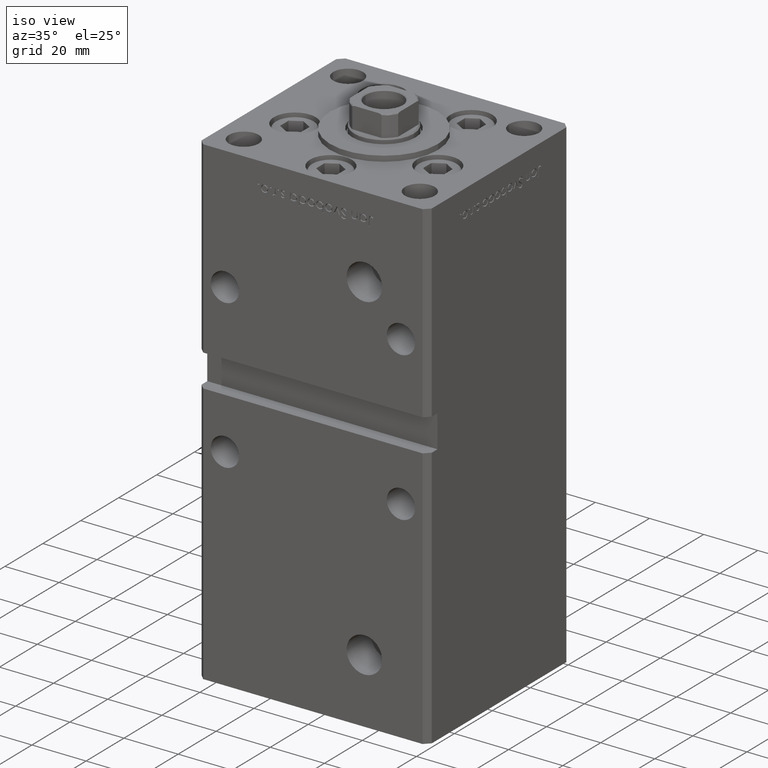
[diagram: clean part render]
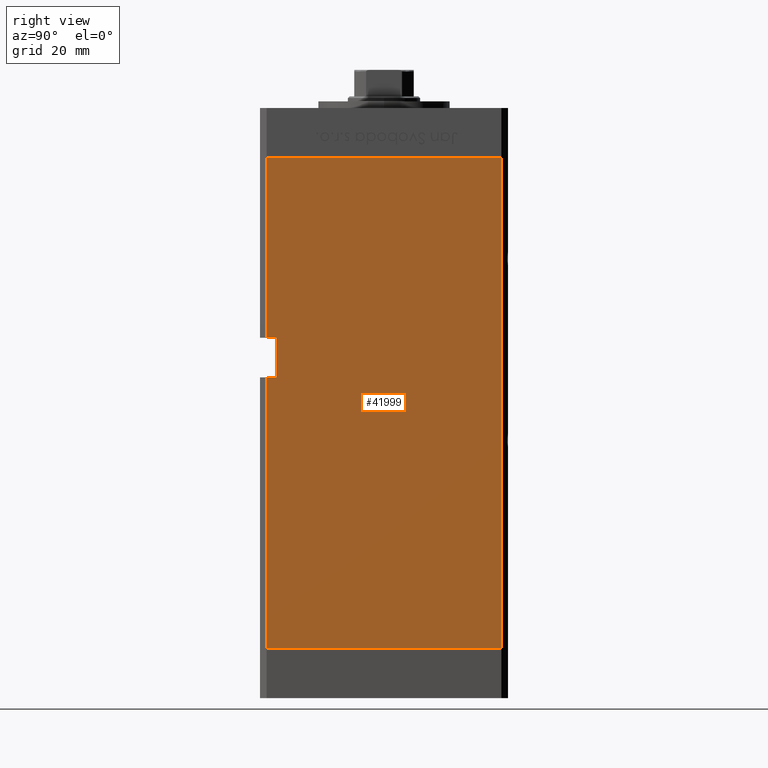
[diagram: tour spotlight — one face highlighted and labeled with its STEP entity id]
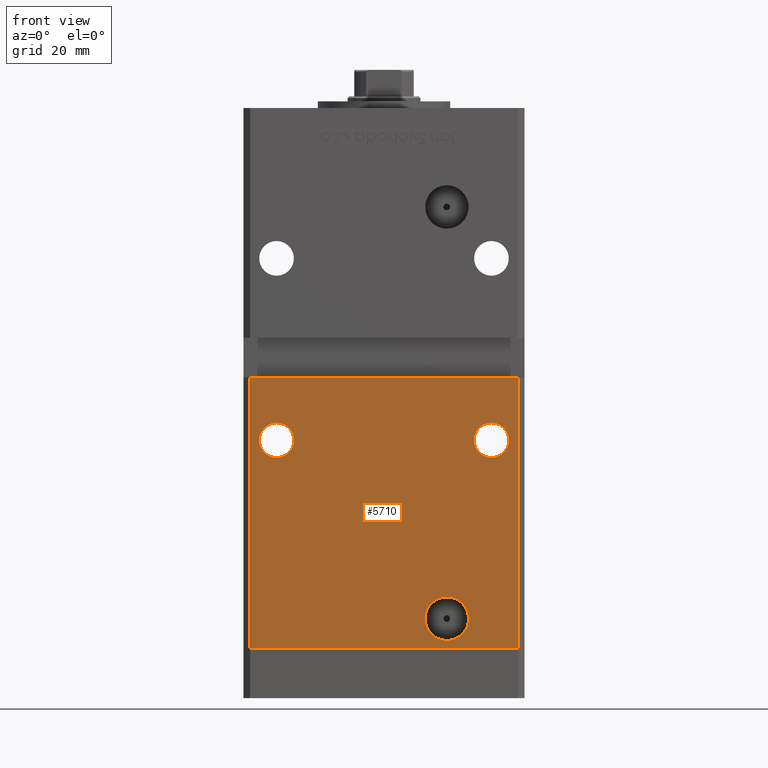
[diagram: tour spotlight — one face highlighted and labeled with its STEP entity id]
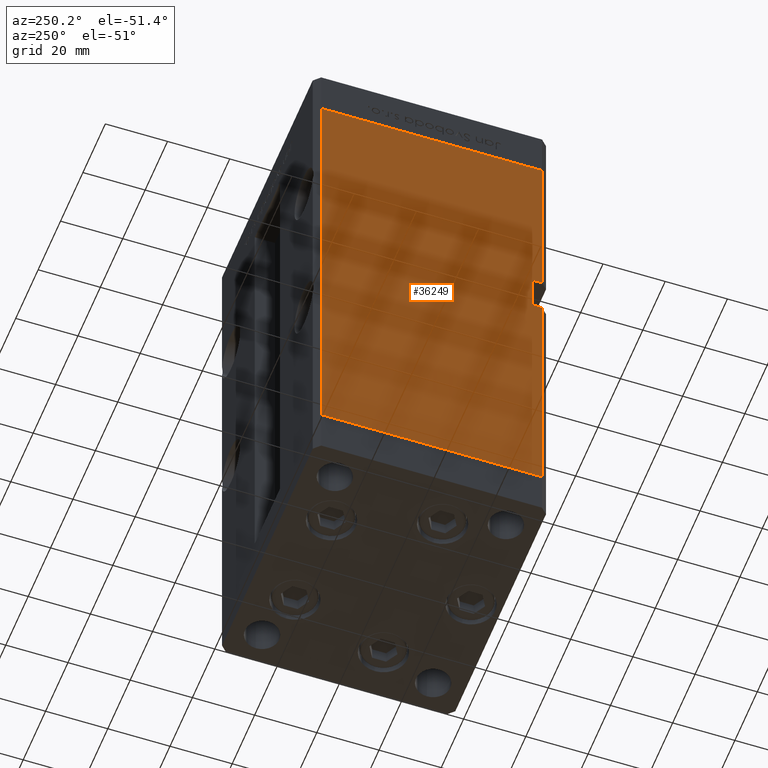
[diagram: tour spotlight — one face highlighted and labeled with its STEP entity id]
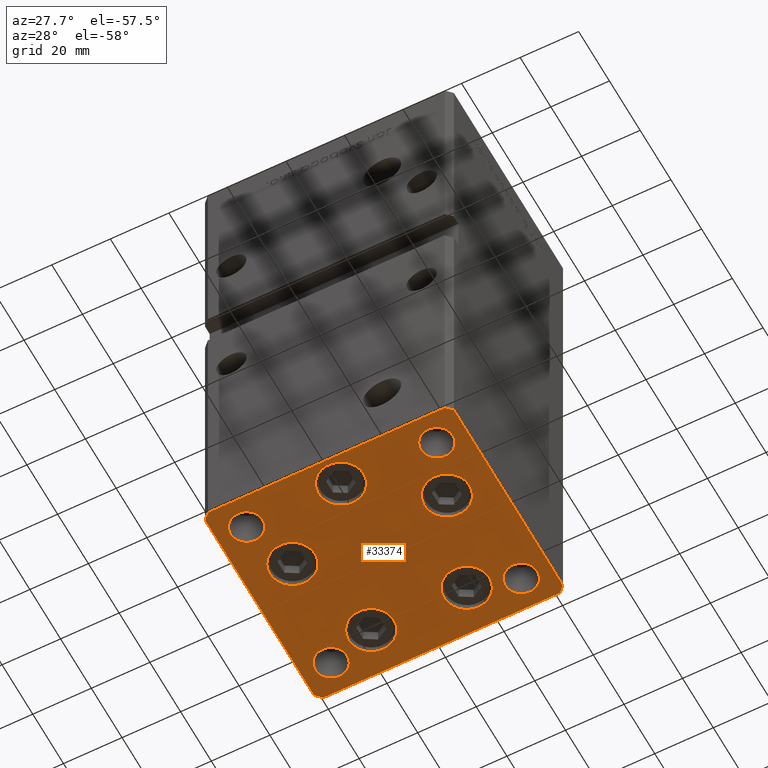
[diagram: tour spotlight — one face highlighted and labeled with its STEP entity id]
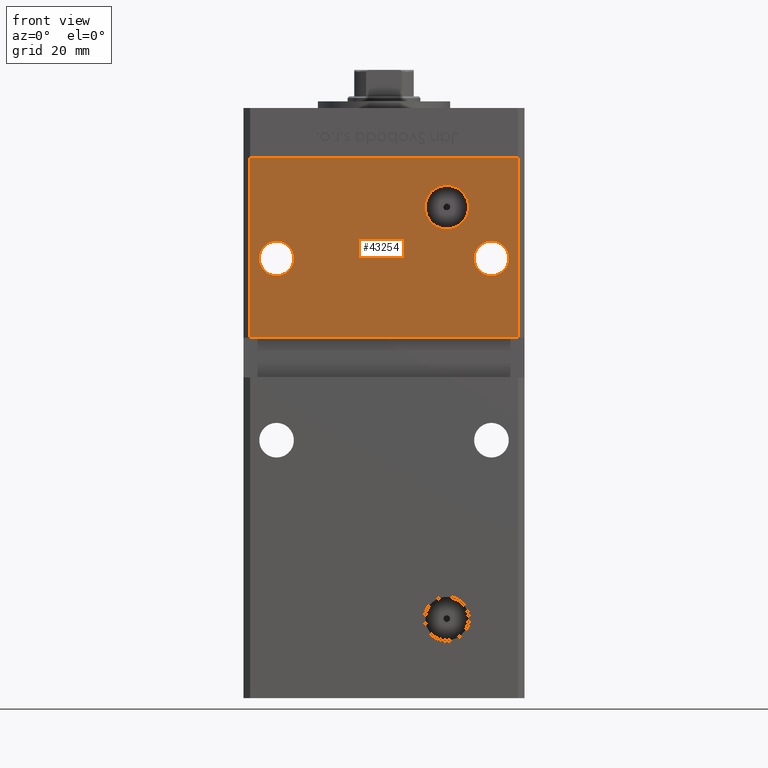
[diagram: tour spotlight — one face highlighted and labeled with its STEP entity id]
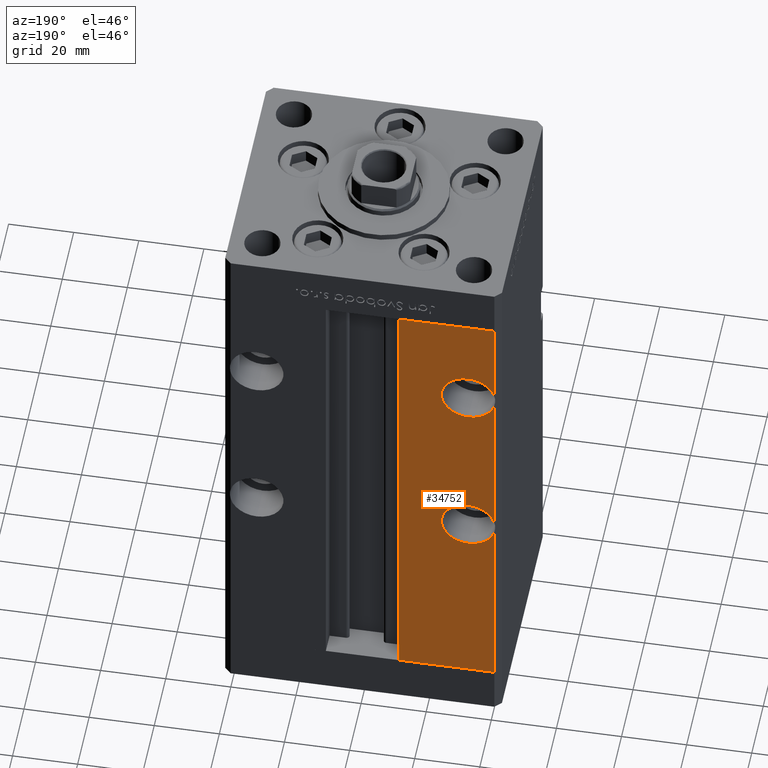
[diagram: tour spotlight — one face highlighted and labeled with its STEP entity id]
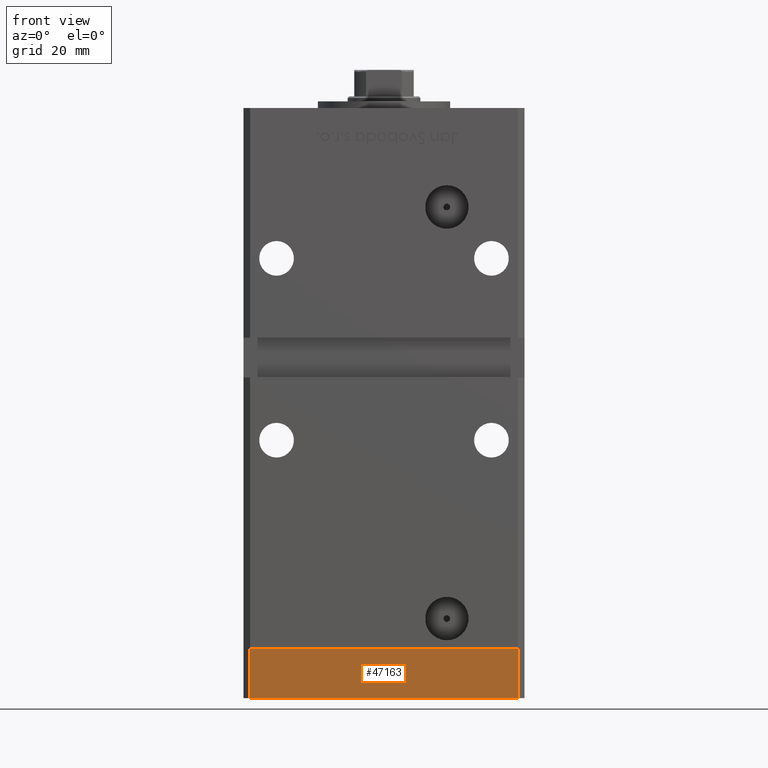
[diagram: tour spotlight — one face highlighted and labeled with its STEP entity id]
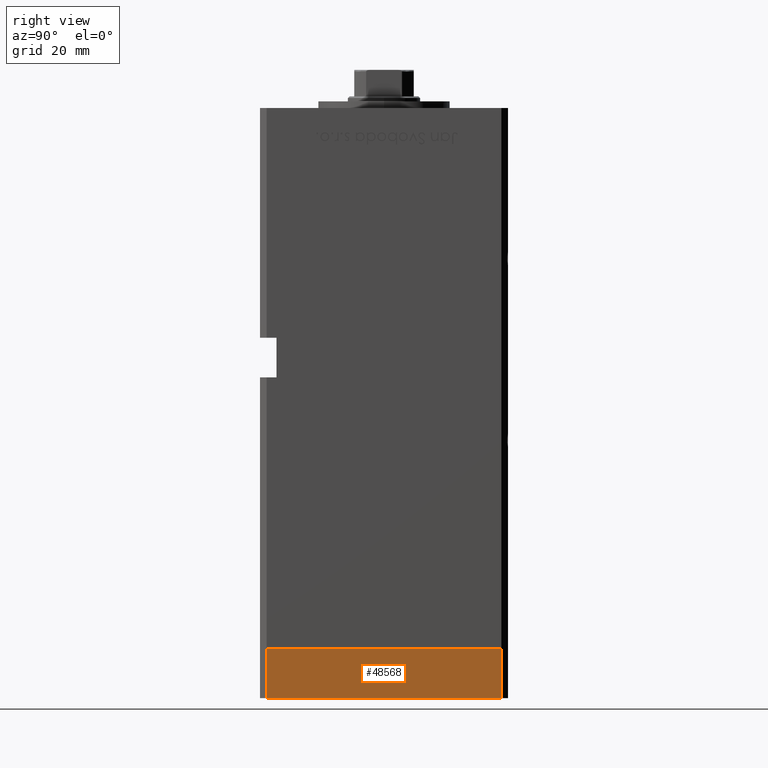
[diagram: tour spotlight — one face highlighted and labeled with its STEP entity id]
A machine part: a face-by-face anatomy tour. The part has 1214 B-rep faces; the first image is the clean iso view, then the 8 largest visible faces are spotlighted one at a time (largest first), each with its STEP entity span.

Face 1 — right view, entity #41999. In plain terms, the highlighted planar face has unit normal (1, -0, 0).
Definition (entity closure, byte-faithful):
#571 = ORIENTED_EDGE ( 'NONE', *, *, #47378, .F. ) ;
#713 = VECTOR ( 'NONE', #23658, 1000.000000000000000 ) ;
#2386 = VECTOR ( 'NONE', #10268, 1000.000000000000000 ) ;
#3245 = ORIENTED_EDGE ( 'NONE', *, *, #11131, .T. ) ;
#3359 = AXIS2_PLACEMENT_3D ( 'NONE', #47724, #52035, #15189 ) ;
#3758 = VERTEX_POINT ( 'NONE', #42557 ) ;
#6397 = VECTOR ( 'NONE', #11391, 1000.000000000000000 ) ;
#6448 = VERTEX_POINT ( 'NONE', #47345 ) ;
#6692 = LINE ( 'NONE', #44355, #18016 ) ;
#7340 = VERTEX_POINT ( 'NONE', #19097 ) ;
#7965 = DIRECTION ( 'NONE',  ( -0.000000000000000000, -0.000000000000000000, -1.000000000000000000 ) ) ;
#8727 = EDGE_LOOP ( 'NONE', ( #3245, #14802, #41220, #32317, #12407, #45527, #51890, #571 ) ) ;
#9413 = VECTOR ( 'NONE', #7965, 1000.000000000000000 ) ;
#9463 = DIRECTION ( 'NONE',  ( -0.000000000000000000, -0.000000000000000000, 1.000000000000000000 ) ) ;
#9722 = CARTESIAN_POINT ( 'NONE',  ( 42.49999999999998579, -32.50000000000000711, 94.00000000000000000 ) ) ;
#10234 = DIRECTION ( 'NONE',  ( -3.909236002201255146E-16, -1.000000000000000000, 0.000000000000000000 ) ) ;
#10268 = DIRECTION ( 'NONE',  ( -0.000000000000000000, -0.000000000000000000, -1.000000000000000000 ) ) ;
#11131 = EDGE_CURVE ( 'NONE', #49789, #6448, #17109, .T. ) ;
#11391 = DIRECTION ( 'NONE',  ( -3.909236002201255146E-16, -1.000000000000000000, 0.000000000000000000 ) ) ;
#12407 = ORIENTED_EDGE ( 'NONE', *, *, #53136, .T. ) ;
#13806 = VERTEX_POINT ( 'NONE', #32964 ) ;
#14802 = ORIENTED_EDGE ( 'NONE', *, *, #35973, .T. ) ;
#15065 = CARTESIAN_POINT ( 'NONE',  ( 42.49999999999998579, -32.50000000000000711, 94.00000000000000000 ) ) ;
#15189 = DIRECTION ( 'NONE',  ( 3.909236002201255146E-16, 1.000000000000000000, 0.000000000000000000 ) ) ;
#15428 = CARTESIAN_POINT ( 'NONE',  ( 42.50000000000001421, 35.50000000000000711, 0.000000000000000000 ) ) ;
#16632 = CARTESIAN_POINT ( 'NONE',  ( 42.49999999999998579, -32.50000000000000000, 82.00000000000000000 ) ) ;
#17109 = LINE ( 'NONE', #41849, #37952 ) ;
#18016 = VECTOR ( 'NONE', #36290, 1000.000000000000000 ) ;
#18282 = LINE ( 'NONE', #15065, #713 ) ;
#19006 = CARTESIAN_POINT ( 'NONE',  ( 42.49999999999998579, -35.50000000000000711, 148.5000000000000000 ) ) ;
#19097 = CARTESIAN_POINT ( 'NONE',  ( 42.49999999999998579, -32.50000000000000711, 94.00000000000000000 ) ) ;
#20364 = CARTESIAN_POINT ( 'NONE',  ( 42.49999999999998579, -35.50000000000000711, 0.000000000000000000 ) ) ;
#23152 = EDGE_CURVE ( 'NONE', #13806, #43445, #51739, .T. ) ;
#23658 = DIRECTION ( 'NONE',  ( -0.000000000000000000, -1.000000000000000000, -0.000000000000000000 ) ) ;
#26167 = CARTESIAN_POINT ( 'NONE',  ( 42.49999999999998579, -35.50000000000000711, 148.5000000000000000 ) ) ;
#26389 = LINE ( 'NONE', #9722, #39562 ) ;
#26747 = FACE_OUTER_BOUND ( 'NONE', #8727, .T. ) ;
#29013 = CARTESIAN_POINT ( 'NONE',  ( 42.50000000000001421, 35.50000000000000711, 148.5000000000000000 ) ) ;
#31322 = PLANE ( 'NONE',  #3359 ) ;
#32263 = VERTEX_POINT ( 'NONE', #43567 ) ;
#32317 = ORIENTED_EDGE ( 'NONE', *, *, #41211, .F. ) ;
#32964 = CARTESIAN_POINT ( 'NONE',  ( 42.50000000000001421, 35.50000000000000711, 0.000000000000000000 ) ) ;
#33071 = VERTEX_POINT ( 'NONE', #29013 ) ;
#35432 = EDGE_CURVE ( 'NONE', #7340, #3758, #18282, .T. ) ;
#35973 = EDGE_CURVE ( 'NONE', #6448, #43445, #38808, .T. ) ;
#36290 = DIRECTION ( 'NONE',  ( -0.000000000000000000, -0.000000000000000000, -1.000000000000000000 ) ) ;
#37952 = VECTOR ( 'NONE', #42113, 1000.000000000000000 ) ;
#38774 = LINE ( 'NONE', #47096, #38874 ) ;
#38808 = LINE ( 'NONE', #26167, #2386 ) ;
#38874 = VECTOR ( 'NONE', #10234, 1000.000000000000000 ) ;
#39562 = VECTOR ( 'NONE', #9463, 1000.000000000000000 ) ;
#41211 = EDGE_CURVE ( 'NONE', #33071, #13806, #6692, .T. ) ;
#41220 = ORIENTED_EDGE ( 'NONE', *, *, #23152, .F. ) ;
#41849 = CARTESIAN_POINT ( 'NONE',  ( 42.49999999999998579, -32.50000000000000711, 82.00000000000000000 ) ) ;
#41999 = ADVANCED_FACE ( 'NONE', ( #26747 ), #31322, .T. ) ;
#42113 = DIRECTION ( 'NONE',  ( -0.000000000000000000, -1.000000000000000000, -0.000000000000000000 ) ) ;
#42557 = CARTESIAN_POINT ( 'NONE',  ( 42.49999999999998579, -35.50000000000000711, 94.00000000000000000 ) ) ;
#43445 = VERTEX_POINT ( 'NONE', #20364 ) ;
#43567 = CARTESIAN_POINT ( 'NONE',  ( 42.49999999999998579, -35.50000000000000711, 148.5000000000000000 ) ) ;
#44355 = CARTESIAN_POINT ( 'NONE',  ( 42.50000000000001421, 35.50000000000000711, 148.5000000000000000 ) ) ;
#44558 = LINE ( 'NONE', #19006, #9413 ) ;
#44664 = EDGE_CURVE ( 'NONE', #32263, #3758, #44558, .T. ) ;
#45527 = ORIENTED_EDGE ( 'NONE', *, *, #44664, .T. ) ;
#47096 = CARTESIAN_POINT ( 'NONE',  ( 42.50000000000001421, 35.50000000000000711, 148.5000000000000000 ) ) ;
#47345 = CARTESIAN_POINT ( 'NONE',  ( 42.49999999999998579, -35.50000000000000711, 82.00000000000000000 ) ) ;
#47378 = EDGE_CURVE ( 'NONE', #49789, #7340, #26389, .T. ) ;
#47724 = CARTESIAN_POINT ( 'NONE',  ( 42.50000000000001421, 35.50000000000000711, 148.5000000000000000 ) ) ;
#49789 = VERTEX_POINT ( 'NONE', #16632 ) ;
#51739 = LINE ( 'NONE', #15428, #6397 ) ;
#51890 = ORIENTED_EDGE ( 'NONE', *, *, #35432, .F. ) ;
#52035 = DIRECTION ( 'NONE',  ( 1.000000000000000000, -3.909236002201255146E-16, 0.000000000000000000 ) ) ;
#53136 = EDGE_CURVE ( 'NONE', #33071, #32263, #38774, .T. ) ;

Face 2 — front view, entity #5710. In plain terms, the highlighted planar face has unit normal (0, 1, 0).
Definition (entity closure, byte-faithful):
#942 = EDGE_LOOP ( 'NONE', ( #20843, #35283 ) ) ;
#1049 = DIRECTION ( 'NONE',  ( 0.000000000000000000, 1.000000000000000000, 0.000000000000000000 ) ) ;
#1378 = CARTESIAN_POINT ( 'NONE',  ( 40.49999999999998579, -37.50000000000000711, 148.5000000000000000 ) ) ;
#1636 = LINE ( 'NONE', #1378, #13682 ) ;
#3093 = EDGE_CURVE ( 'NONE', #15983, #48112, #40447, .T. ) ;
#3133 = VERTEX_POINT ( 'NONE', #23960 ) ;
#3210 = VECTOR ( 'NONE', #19654, 1000.000000000000000 ) ;
#3225 = CARTESIAN_POINT ( 'NONE',  ( 40.49999999999998579, -37.50000000000000711, 0.000000000000000000 ) ) ;
#3257 = CARTESIAN_POINT ( 'NONE',  ( -40.49999999999998579, -37.50000000000000711, 0.000000000000000000 ) ) ;
#3728 = CIRCLE ( 'NONE', #9711, 6.579999999999998295 ) ;
#3849 = EDGE_CURVE ( 'NONE', #42755, #8550, #5102, .T. ) ;
#4909 = CARTESIAN_POINT ( 'NONE',  ( 32.50000000000000000, -37.50000000000000711, 57.75000000000000711 ) ) ;
#5021 = CARTESIAN_POINT ( 'NONE',  ( 18.99999999999998934, -37.50000000000000711, 9.000000000000007105 ) ) ;
#5102 = CIRCLE ( 'NONE', #9530, 5.249999999999991118 ) ;
#5710 = ADVANCED_FACE ( 'NONE', ( #45978, #16929, #41670, #21491 ), #13941, .F. ) ;
#5785 = AXIS2_PLACEMENT_3D ( 'NONE', #27566, #11429, #43965 ) ;
#6163 = DIRECTION ( 'NONE',  ( 0.000000000000000000, 1.000000000000000000, 0.000000000000000000 ) ) ;
#8316 = EDGE_LOOP ( 'NONE', ( #27635, #27469 ) ) ;
#8443 = ORIENTED_EDGE ( 'NONE', *, *, #29536, .F. ) ;
#8550 = VERTEX_POINT ( 'NONE', #47026 ) ;
#8862 = LINE ( 'NONE', #44923, #24620 ) ;
#8988 = VERTEX_POINT ( 'NONE', #35267 ) ;
#9117 = DIRECTION ( 'NONE',  ( 0.000000000000000000, -0.000000000000000000, 1.000000000000000000 ) ) ;
#9148 = CARTESIAN_POINT ( 'NONE',  ( 40.49999999999998579, -37.50000000000000711, 82.00000000000000000 ) ) ;
#9451 = EDGE_LOOP ( 'NONE', ( #51486, #52479 ) ) ;
#9489 = DIRECTION ( 'NONE',  ( 0.000000000000000000, 1.000000000000000000, 0.000000000000000000 ) ) ;
#9530 = AXIS2_PLACEMENT_3D ( 'NONE', #12134, #49774, #13190 ) ;
#9711 = AXIS2_PLACEMENT_3D ( 'NONE', #5021, #34071, #29515 ) ;
#9828 = CARTESIAN_POINT ( 'NONE',  ( -32.50000000000000000, -37.50000000000000711, 57.75000000000000000 ) ) ;
#9898 = CARTESIAN_POINT ( 'NONE',  ( -40.49999999999998579, -37.50000000000000711, 148.5000000000000000 ) ) ;
#10189 = DIRECTION ( 'NONE',  ( 0.000000000000000000, 0.000000000000000000, 1.000000000000000000 ) ) ;
#11360 = VERTEX_POINT ( 'NONE', #25641 ) ;
#11429 = DIRECTION ( 'NONE',  ( 0.000000000000000000, -1.000000000000000000, 0.000000000000000000 ) ) ;
#12134 = CARTESIAN_POINT ( 'NONE',  ( -32.50000000000000000, -37.50000000000000711, 63.00000000000000000 ) ) ;
#12583 = ORIENTED_EDGE ( 'NONE', *, *, #40253, .F. ) ;
#12635 = DIRECTION ( 'NONE',  ( 1.000000000000000000, 0.000000000000000000, 0.000000000000000000 ) ) ;
#13190 = DIRECTION ( 'NONE',  ( 0.000000000000000000, 0.000000000000000000, 1.000000000000000000 ) ) ;
#13266 = CARTESIAN_POINT ( 'NONE',  ( -32.50000000000000000, -37.50000000000000711, 63.00000000000000000 ) ) ;
#13682 = VECTOR ( 'NONE', #14278, 1000.000000000000000 ) ;
#13941 = PLANE ( 'NONE',  #38673 ) ;
#14278 = DIRECTION ( 'NONE',  ( -0.000000000000000000, -0.000000000000000000, -1.000000000000000000 ) ) ;
#14604 = EDGE_CURVE ( 'NONE', #8988, #3133, #3728, .T. ) ;
#15983 = VERTEX_POINT ( 'NONE', #4909 ) ;
#16929 = FACE_BOUND ( 'NONE', #8316, .T. ) ;
#16972 = CIRCLE ( 'NONE', #5785, 6.579999999999998295 ) ;
#19654 = DIRECTION ( 'NONE',  ( 1.000000000000000000, 0.000000000000000000, 0.000000000000000000 ) ) ;
#20843 = ORIENTED_EDGE ( 'NONE', *, *, #30924, .F. ) ;
#21164 = EDGE_LOOP ( 'NONE', ( #12583, #8443, #28041, #31751 ) ) ;
#21330 = AXIS2_PLACEMENT_3D ( 'NONE', #13266, #9489, #29676 ) ;
#21491 = FACE_OUTER_BOUND ( 'NONE', #21164, .T. ) ;
#23960 = CARTESIAN_POINT ( 'NONE',  ( 18.99999999999998934, -37.50000000000000711, 2.420000000000009699 ) ) ;
#24134 = AXIS2_PLACEMENT_3D ( 'NONE', #28001, #40373, #32562 ) ;
#24620 = VECTOR ( 'NONE', #12635, 1000.000000000000000 ) ;
#25641 = CARTESIAN_POINT ( 'NONE',  ( -40.49999999999998579, -37.50000000000000711, 0.000000000000000000 ) ) ;
#25731 = AXIS2_PLACEMENT_3D ( 'NONE', #47843, #6163, #10189 ) ;
#27469 = ORIENTED_EDGE ( 'NONE', *, *, #3093, .T. ) ;
#27566 = CARTESIAN_POINT ( 'NONE',  ( 18.99999999999998934, -37.50000000000000711, 9.000000000000007105 ) ) ;
#27600 = CARTESIAN_POINT ( 'NONE',  ( 32.50000000000000000, -37.50000000000000711, 68.24999999999998579 ) ) ;
#27635 = ORIENTED_EDGE ( 'NONE', *, *, #44328, .T. ) ;
#28001 = CARTESIAN_POINT ( 'NONE',  ( 32.50000000000000000, -37.50000000000000711, 63.00000000000000000 ) ) ;
#28041 = ORIENTED_EDGE ( 'NONE', *, *, #30455, .T. ) ;
#28815 = VERTEX_POINT ( 'NONE', #3225 ) ;
#29515 = DIRECTION ( 'NONE',  ( 0.000000000000000000, 0.000000000000000000, -1.000000000000000000 ) ) ;
#29536 = EDGE_CURVE ( 'NONE', #30058, #50208, #8862, .T. ) ;
#29676 = DIRECTION ( 'NONE',  ( 0.000000000000000000, 0.000000000000000000, 1.000000000000000000 ) ) ;
#30058 = VERTEX_POINT ( 'NONE', #41360 ) ;
#30455 = EDGE_CURVE ( 'NONE', #30058, #11360, #41909, .T. ) ;
#30924 = EDGE_CURVE ( 'NONE', #3133, #8988, #16972, .T. ) ;
#31751 = ORIENTED_EDGE ( 'NONE', *, *, #33678, .T. ) ;
#32562 = DIRECTION ( 'NONE',  ( 0.000000000000000000, 0.000000000000000000, 1.000000000000000000 ) ) ;
#33678 = EDGE_CURVE ( 'NONE', #11360, #28815, #40106, .T. ) ;
#34071 = DIRECTION ( 'NONE',  ( 0.000000000000000000, -1.000000000000000000, 0.000000000000000000 ) ) ;
#35267 = CARTESIAN_POINT ( 'NONE',  ( 18.99999999999998934, -37.50000000000000711, 15.58000000000000718 ) ) ;
#35283 = ORIENTED_EDGE ( 'NONE', *, *, #14604, .F. ) ;
#35865 = EDGE_CURVE ( 'NONE', #8550, #42755, #48782, .T. ) ;
#38673 = AXIS2_PLACEMENT_3D ( 'NONE', #9898, #1049, #9117 ) ;
#40106 = LINE ( 'NONE', #3257, #3210 ) ;
#40253 = EDGE_CURVE ( 'NONE', #50208, #28815, #1636, .T. ) ;
#40373 = DIRECTION ( 'NONE',  ( 0.000000000000000000, 1.000000000000000000, 0.000000000000000000 ) ) ;
#40447 = CIRCLE ( 'NONE', #24134, 5.249999999999991118 ) ;
#41360 = CARTESIAN_POINT ( 'NONE',  ( -40.49999999999998579, -37.50000000000000711, 82.00000000000000000 ) ) ;
#41670 = FACE_BOUND ( 'NONE', #942, .T. ) ;
#41909 = LINE ( 'NONE', #42957, #46983 ) ;
#42755 = VERTEX_POINT ( 'NONE', #9828 ) ;
#42957 = CARTESIAN_POINT ( 'NONE',  ( -40.49999999999998579, -37.50000000000000711, 148.5000000000000000 ) ) ;
#43965 = DIRECTION ( 'NONE',  ( 0.000000000000000000, 0.000000000000000000, -1.000000000000000000 ) ) ;
#44328 = EDGE_CURVE ( 'NONE', #48112, #15983, #47227, .T. ) ;
#44923 = CARTESIAN_POINT ( 'NONE',  ( -42.49999999999998579, -37.50000000000000711, 82.00000000000000000 ) ) ;
#45978 = FACE_BOUND ( 'NONE', #9451, .T. ) ;
#46739 = DIRECTION ( 'NONE',  ( -0.000000000000000000, -0.000000000000000000, -1.000000000000000000 ) ) ;
#46983 = VECTOR ( 'NONE', #46739, 1000.000000000000000 ) ;
#47026 = CARTESIAN_POINT ( 'NONE',  ( -32.50000000000000000, -37.50000000000000711, 68.24999999999998579 ) ) ;
#47227 = CIRCLE ( 'NONE', #25731, 5.249999999999991118 ) ;
#47843 = CARTESIAN_POINT ( 'NONE',  ( 32.50000000000000000, -37.50000000000000711, 63.00000000000000000 ) ) ;
#48112 = VERTEX_POINT ( 'NONE', #27600 ) ;
#48782 = CIRCLE ( 'NONE', #21330, 5.249999999999991118 ) ;
#49774 = DIRECTION ( 'NONE',  ( 0.000000000000000000, 1.000000000000000000, 0.000000000000000000 ) ) ;
#50208 = VERTEX_POINT ( 'NONE', #9148 ) ;
#51486 = ORIENTED_EDGE ( 'NONE', *, *, #35865, .T. ) ;
#52479 = ORIENTED_EDGE ( 'NONE', *, *, #3849, .T. ) ;

Face 3 — auxiliary view, entity #36249. In plain terms, the highlighted planar face has unit normal (1, 0, 0).
Definition (entity closure, byte-faithful):
#1061 = EDGE_CURVE ( 'NONE', #7488, #26530, #2418, .T. ) ;
#1353 = DIRECTION ( 'NONE',  ( 1.000000000000000000, 3.909236002201255146E-16, -0.000000000000000000 ) ) ;
#1468 = LINE ( 'NONE', #30246, #1837 ) ;
#1708 = VERTEX_POINT ( 'NONE', #32687 ) ;
#1837 = VECTOR ( 'NONE', #47643, 1000.000000000000000 ) ;
#2418 = LINE ( 'NONE', #26896, #51495 ) ;
#3355 = ORIENTED_EDGE ( 'NONE', *, *, #4366, .T. ) ;
#3614 = EDGE_CURVE ( 'NONE', #12283, #35704, #22184, .T. ) ;
#4082 = CARTESIAN_POINT ( 'NONE',  ( -42.49999999999998579, -35.49999999999996447, 82.00000000000000000 ) ) ;
#4366 = EDGE_CURVE ( 'NONE', #35704, #8337, #5458, .T. ) ;
#5458 = LINE ( 'NONE', #38023, #14550 ) ;
#5633 = DIRECTION ( 'NONE',  ( -5.782411586589358625E-16, 0.000000000000000000, -1.000000000000000000 ) ) ;
#5801 = ORIENTED_EDGE ( 'NONE', *, *, #50012, .F. ) ;
#6367 = CARTESIAN_POINT ( 'NONE',  ( -42.49999999999998579, -35.50000000000000711, 148.5000000000000000 ) ) ;
#6892 = ORIENTED_EDGE ( 'NONE', *, *, #12719, .F. ) ;
#7488 = VERTEX_POINT ( 'NONE', #9843 ) ;
#8095 = VECTOR ( 'NONE', #48235, 1000.000000000000000 ) ;
#8337 = VERTEX_POINT ( 'NONE', #45451 ) ;
#9668 = CARTESIAN_POINT ( 'NONE',  ( -42.49999999999998579, -32.50000000000000711, 94.00000000000000000 ) ) ;
#9843 = CARTESIAN_POINT ( 'NONE',  ( -42.49999999999998579, -32.50000000000000711, 94.00000000000000000 ) ) ;
#12283 = VERTEX_POINT ( 'NONE', #42786 ) ;
#12719 = EDGE_CURVE ( 'NONE', #28749, #8337, #50732, .T. ) ;
#14150 = DIRECTION ( 'NONE',  ( -0.000000000000000000, -0.000000000000000000, -1.000000000000000000 ) ) ;
#14171 = ORIENTED_EDGE ( 'NONE', *, *, #3614, .T. ) ;
#14550 = VECTOR ( 'NONE', #18093, 1000.000000000000000 ) ;
#17396 = VECTOR ( 'NONE', #14150, 1000.000000000000000 ) ;
#17915 = CARTESIAN_POINT ( 'NONE',  ( -42.49999999999998579, -35.50000000000000711, 148.5000000000000000 ) ) ;
#18093 = DIRECTION ( 'NONE',  ( 3.909236002201255146E-16, -1.000000000000000000, 0.000000000000000000 ) ) ;
#18386 = LINE ( 'NONE', #39109, #8095 ) ;
#20204 = ORIENTED_EDGE ( 'NONE', *, *, #1061, .T. ) ;
#22184 = LINE ( 'NONE', #50957, #27540 ) ;
#23096 = EDGE_CURVE ( 'NONE', #12283, #28094, #18386, .T. ) ;
#24491 = EDGE_CURVE ( 'NONE', #7488, #1708, #46263, .T. ) ;
#26369 = DIRECTION ( 'NONE',  ( -0.000000000000000000, -1.000000000000000000, -0.000000000000000000 ) ) ;
#26530 = VERTEX_POINT ( 'NONE', #33115 ) ;
#26616 = PLANE ( 'NONE',  #39343 ) ;
#26896 = CARTESIAN_POINT ( 'NONE',  ( -42.49999999999998579, -32.50000000000000711, 94.00000000000000000 ) ) ;
#27540 = VECTOR ( 'NONE', #38332, 1000.000000000000000 ) ;
#28094 = VERTEX_POINT ( 'NONE', #36779 ) ;
#28749 = VERTEX_POINT ( 'NONE', #4082 ) ;
#29206 = VECTOR ( 'NONE', #38399, 1000.000000000000000 ) ;
#30246 = CARTESIAN_POINT ( 'NONE',  ( -42.49999999999998579, -32.50000000000000711, 82.00000000000000000 ) ) ;
#31191 = DIRECTION ( 'NONE',  ( -3.909236002201255146E-16, 1.000000000000000000, 0.000000000000000000 ) ) ;
#32687 = CARTESIAN_POINT ( 'NONE',  ( -42.49999999999998579, -32.50000000000000711, 82.00000000000000000 ) ) ;
#33115 = CARTESIAN_POINT ( 'NONE',  ( -42.49999999999998579, -35.50000000000001421, 94.00000000000000000 ) ) ;
#34439 = FACE_OUTER_BOUND ( 'NONE', #44667, .T. ) ;
#35704 = VERTEX_POINT ( 'NONE', #44908 ) ;
#36249 = ADVANCED_FACE ( 'NONE', ( #34439 ), #26616, .F. ) ;
#36779 = CARTESIAN_POINT ( 'NONE',  ( -42.49999999999998579, -35.50000000000000711, 148.5000000000000000 ) ) ;
#38007 = ORIENTED_EDGE ( 'NONE', *, *, #23096, .F. ) ;
#38023 = CARTESIAN_POINT ( 'NONE',  ( -42.50000000000001421, 35.50000000000000711, 0.000000000000000000 ) ) ;
#38332 = DIRECTION ( 'NONE',  ( -0.000000000000000000, -0.000000000000000000, -1.000000000000000000 ) ) ;
#38399 = DIRECTION ( 'NONE',  ( -0.000000000000000000, -0.000000000000000000, -1.000000000000000000 ) ) ;
#38477 = ORIENTED_EDGE ( 'NONE', *, *, #24491, .F. ) ;
#38660 = LINE ( 'NONE', #6367, #29206 ) ;
#39109 = CARTESIAN_POINT ( 'NONE',  ( -42.50000000000001421, 35.50000000000000711, 148.5000000000000000 ) ) ;
#39343 = AXIS2_PLACEMENT_3D ( 'NONE', #51635, #1353, #31191 ) ;
#41663 = VECTOR ( 'NONE', #5633, 1000.000000000000000 ) ;
#42786 = CARTESIAN_POINT ( 'NONE',  ( -42.50000000000001421, 35.50000000000000711, 148.5000000000000000 ) ) ;
#44575 = EDGE_CURVE ( 'NONE', #28094, #26530, #38660, .T. ) ;
#44667 = EDGE_LOOP ( 'NONE', ( #6892, #5801, #38477, #20204, #51641, #38007, #14171, #3355 ) ) ;
#44908 = CARTESIAN_POINT ( 'NONE',  ( -42.50000000000001421, 35.50000000000000711, 0.000000000000000000 ) ) ;
#45451 = CARTESIAN_POINT ( 'NONE',  ( -42.49999999999998579, -35.50000000000000711, 0.000000000000000000 ) ) ;
#46263 = LINE ( 'NONE', #9668, #41663 ) ;
#47643 = DIRECTION ( 'NONE',  ( -0.000000000000000000, -1.000000000000000000, -0.000000000000000000 ) ) ;
#48235 = DIRECTION ( 'NONE',  ( 3.909236002201255146E-16, -1.000000000000000000, 0.000000000000000000 ) ) ;
#50012 = EDGE_CURVE ( 'NONE', #1708, #28749, #1468, .T. ) ;
#50732 = LINE ( 'NONE', #17915, #17396 ) ;
#50957 = CARTESIAN_POINT ( 'NONE',  ( -42.50000000000001421, 35.50000000000000711, 148.5000000000000000 ) ) ;
#51495 = VECTOR ( 'NONE', #26369, 1000.000000000000000 ) ;
#51635 = CARTESIAN_POINT ( 'NONE',  ( -42.50000000000001421, 35.50000000000000711, 148.5000000000000000 ) ) ;
#51641 = ORIENTED_EDGE ( 'NONE', *, *, #44575, .F. ) ;

Face 4 — auxiliary view, entity #33374. In plain terms, the highlighted planar face has unit normal (0, 0, -1).
Definition (entity closure, byte-faithful):
#54 = CIRCLE ( 'NONE', #6912, 7.750000000000000000 ) ;
#85 = FACE_BOUND ( 'NONE', #50669, .T. ) ;
#116 = CARTESIAN_POINT ( 'NONE',  ( 26.39865316429776954, -9.333333333333330373, 0.000000000000000000 ) ) ;
#751 = DIRECTION ( 'NONE',  ( 0.000000000000000000, -0.000000000000000000, -1.000000000000000000 ) ) ;
#1447 = VERTEX_POINT ( 'NONE', #15277 ) ;
#1486 = DIRECTION ( 'NONE',  ( -1.000000000000000000, -3.426614273534436165E-16, 0.000000000000000000 ) ) ;
#1587 = EDGE_CURVE ( 'NONE', #45967, #31168, #38678, .T. ) ;
#2163 = EDGE_CURVE ( 'NONE', #26886, #48625, #30945, .T. ) ;
#2267 = ORIENTED_EDGE ( 'NONE', *, *, #10922, .T. ) ;
#2478 = DIRECTION ( 'NONE',  ( 0.000000000000000000, -0.000000000000000000, -1.000000000000000000 ) ) ;
#2520 = DIRECTION ( 'NONE',  ( 0.000000000000000000, -0.000000000000000000, -1.000000000000000000 ) ) ;
#2611 = VERTEX_POINT ( 'NONE', #50677 ) ;
#2710 = LINE ( 'NONE', #31745, #16715 ) ;
#3080 = EDGE_LOOP ( 'NONE', ( #2267, #33334, #6301, #21693, #38345, #46416, #10277, #28060 ) ) ;
#3110 = DIRECTION ( 'NONE',  ( 0.000000000000000000, -0.000000000000000000, -1.000000000000000000 ) ) ;
#3114 = DIRECTION ( 'NONE',  ( 0.000000000000000000, -0.000000000000000000, -1.000000000000000000 ) ) ;
#3386 = CARTESIAN_POINT ( 'NONE',  ( -32.50000000000000000, -27.49999999999999645, 0.000000000000000000 ) ) ;
#3771 = DIRECTION ( 'NONE',  ( 9.773090005503140331E-17, -1.000000000000000000, 0.000000000000000000 ) ) ;
#4385 = PLANE ( 'NONE',  #4896 ) ;
#4458 = DIRECTION ( 'NONE',  ( -0.7071067811865474617, 0.7071067811865474617, 0.000000000000000000 ) ) ;
#4549 = CARTESIAN_POINT ( 'NONE',  ( 3.429011037612589276E-15, -28.00000000000000000, 0.000000000000000000 ) ) ;
#4832 = DIRECTION ( 'NONE',  ( 1.000000000000000000, 0.000000000000000000, 0.000000000000000000 ) ) ;
#4896 = AXIS2_PLACEMENT_3D ( 'NONE', #7881, #24299, #12193 ) ;
#5076 = VECTOR ( 'NONE', #29825, 1000.000000000000000 ) ;
#5274 = EDGE_CURVE ( 'NONE', #16379, #34830, #33494, .T. ) ;
#5322 = DIRECTION ( 'NONE',  ( 1.000000000000000000, 0.000000000000000000, 0.000000000000000000 ) ) ;
#5719 = CARTESIAN_POINT ( 'NONE',  ( 3.429011037612589276E-15, -28.00000000000000000, 0.000000000000000000 ) ) ;
#5852 = CARTESIAN_POINT ( 'NONE',  ( -18.64865316429776954, -9.333333333333335702, 0.000000000000000000 ) ) ;
#5881 = VERTEX_POINT ( 'NONE', #7458 ) ;
#6050 = EDGE_LOOP ( 'NONE', ( #11417, #10415 ) ) ;
#6245 = DIRECTION ( 'NONE',  ( 0.7071067811865474617, 0.7071067811865474617, 0.000000000000000000 ) ) ;
#6301 = ORIENTED_EDGE ( 'NONE', *, *, #21643, .T. ) ;
#6327 = AXIS2_PLACEMENT_3D ( 'NONE', #5719, #2478, #10548 ) ;
#6499 = LINE ( 'NONE', #22913, #32957 ) ;
#6698 = ORIENTED_EDGE ( 'NONE', *, *, #7667, .T. ) ;
#6912 = AXIS2_PLACEMENT_3D ( 'NONE', #47754, #3110, #43717 ) ;
#7458 = CARTESIAN_POINT ( 'NONE',  ( -40.49999999999999289, -37.50000000000002132, 0.000000000000000000 ) ) ;
#7667 = EDGE_CURVE ( 'NONE', #7760, #47199, #54, .T. ) ;
#7760 = VERTEX_POINT ( 'NONE', #53129 ) ;
#7881 = CARTESIAN_POINT ( 'NONE',  ( 0.000000000000000000, 0.000000000000000000, 0.000000000000000000 ) ) ;
#8149 = FACE_BOUND ( 'NONE', #25145, .T. ) ;
#8643 = DIRECTION ( 'NONE',  ( 1.000000000000000000, 0.000000000000000000, 0.000000000000000000 ) ) ;
#8771 = AXIS2_PLACEMENT_3D ( 'NONE', #44825, #11736, #24374 ) ;
#8945 = VECTOR ( 'NONE', #6245, 1000.000000000000114 ) ;
#8994 = DIRECTION ( 'NONE',  ( 1.000000000000000000, 0.000000000000000000, 0.000000000000000000 ) ) ;
#9549 = VERTEX_POINT ( 'NONE', #26522 ) ;
#9864 = CARTESIAN_POINT ( 'NONE',  ( 24.07291334290542650, 22.75000000000000000, 0.000000000000000000 ) ) ;
#10079 = CARTESIAN_POINT ( 'NONE',  ( 40.49999999999991473, 37.50000000000000711, 0.000000000000000000 ) ) ;
#10252 = EDGE_CURVE ( 'NONE', #11074, #22995, #49117, .T. ) ;
#10277 = ORIENTED_EDGE ( 'NONE', *, *, #10252, .T. ) ;
#10298 = EDGE_CURVE ( 'NONE', #22836, #24853, #47369, .T. ) ;
#10415 = ORIENTED_EDGE ( 'NONE', *, *, #41088, .T. ) ;
#10441 = ORIENTED_EDGE ( 'NONE', *, *, #52154, .T. ) ;
#10548 = DIRECTION ( 'NONE',  ( 1.000000000000000000, 0.000000000000000000, 0.000000000000000000 ) ) ;
#10557 = AXIS2_PLACEMENT_3D ( 'NONE', #38179, #17725, #4832 ) ;
#10742 = VECTOR ( 'NONE', #4458, 1000.000000000000114 ) ;
#10920 = DIRECTION ( 'NONE',  ( 0.000000000000000000, -0.000000000000000000, -1.000000000000000000 ) ) ;
#10922 = EDGE_CURVE ( 'NONE', #2611, #5881, #22324, .T. ) ;
#11054 = EDGE_CURVE ( 'NONE', #48780, #11074, #46939, .T. ) ;
#11063 = CIRCLE ( 'NONE', #17931, 5.499999999999998224 ) ;
#11074 = VERTEX_POINT ( 'NONE', #45892 ) ;
#11084 = LINE ( 'NONE', #26687, #8945 ) ;
#11417 = ORIENTED_EDGE ( 'NONE', *, *, #21701, .T. ) ;
#11598 = EDGE_CURVE ( 'NONE', #48625, #26886, #48309, .T. ) ;
#11630 = DIRECTION ( 'NONE',  ( 0.000000000000000000, -0.000000000000000000, -1.000000000000000000 ) ) ;
#11660 = FACE_BOUND ( 'NONE', #18322, .T. ) ;
#11736 = DIRECTION ( 'NONE',  ( -0.000000000000000000, 0.000000000000000000, 1.000000000000000000 ) ) ;
#11830 = VERTEX_POINT ( 'NONE', #15482 ) ;
#11920 = FACE_BOUND ( 'NONE', #45303, .T. ) ;
#12193 = DIRECTION ( 'NONE',  ( 1.000000000000000000, 0.000000000000000000, 0.000000000000000000 ) ) ;
#12505 = DIRECTION ( 'NONE',  ( -0.000000000000000000, 0.000000000000000000, 1.000000000000000000 ) ) ;
#12636 = CARTESIAN_POINT ( 'NONE',  ( -40.49999999999999289, -37.50000000000002132, 0.000000000000000000 ) ) ;
#13142 = DIRECTION ( 'NONE',  ( 0.000000000000000000, -0.000000000000000000, -1.000000000000000000 ) ) ;
#13224 = EDGE_CURVE ( 'NONE', #9549, #49226, #35451, .T. ) ;
#13293 = CARTESIAN_POINT ( 'NONE',  ( 42.49999999999992895, 35.50000000000000000, 0.000000000000000000 ) ) ;
#13316 = CARTESIAN_POINT ( 'NONE',  ( 42.49999999999992895, 35.50000000000000000, 0.000000000000000000 ) ) ;
#13651 = DIRECTION ( 'NONE',  ( 1.000000000000000000, 0.000000000000000000, 0.000000000000000000 ) ) ;
#13690 = DIRECTION ( 'NONE',  ( 1.000000000000000000, 0.000000000000000000, 0.000000000000000000 ) ) ;
#13783 = CARTESIAN_POINT ( 'NONE',  ( 18.64865316429776954, -9.333333333333330373, 0.000000000000000000 ) ) ;
#13863 = CARTESIAN_POINT ( 'NONE',  ( -26.39865316429776954, -9.333333333333337478, 0.000000000000000000 ) ) ;
#14136 = CIRCLE ( 'NONE', #24471, 7.750000000000000000 ) ;
#14746 = VECTOR ( 'NONE', #20337, 1000.000000000000000 ) ;
#14794 = AXIS2_PLACEMENT_3D ( 'NONE', #116, #50124, #29422 ) ;
#15277 = CARTESIAN_POINT ( 'NONE',  ( 42.50000000000000711, -35.50000000000000000, 0.000000000000000000 ) ) ;
#15482 = CARTESIAN_POINT ( 'NONE',  ( -27.00000000000000355, 27.50000000000000355, 0.000000000000000000 ) ) ;
#15704 = EDGE_CURVE ( 'NONE', #31168, #45967, #51839, .T. ) ;
#16379 = VERTEX_POINT ( 'NONE', #52026 ) ;
#16530 = CARTESIAN_POINT ( 'NONE',  ( 38.00000000000000000, -27.49999999999999645, 0.000000000000000000 ) ) ;
#16641 = AXIS2_PLACEMENT_3D ( 'NONE', #34814, #25429, #34024 ) ;
#16715 = VECTOR ( 'NONE', #3771, 1000.000000000000000 ) ;
#16742 = EDGE_CURVE ( 'NONE', #1447, #39898, #6499, .T. ) ;
#17725 = DIRECTION ( 'NONE',  ( 0.000000000000000000, -0.000000000000000000, -1.000000000000000000 ) ) ;
#17931 = AXIS2_PLACEMENT_3D ( 'NONE', #26758, #34049, #50454 ) ;
#18322 = EDGE_LOOP ( 'NONE', ( #42640, #36013 ) ) ;
#18385 = EDGE_CURVE ( 'NONE', #24853, #22836, #27028, .T. ) ;
#18426 = AXIS2_PLACEMENT_3D ( 'NONE', #47788, #23589, #19279 ) ;
#18594 = EDGE_CURVE ( 'NONE', #46749, #41412, #14136, .T. ) ;
#19252 = CARTESIAN_POINT ( 'NONE',  ( 38.00000000000000000, 27.49999999999999645, 0.000000000000000000 ) ) ;
#19279 = DIRECTION ( 'NONE',  ( 1.000000000000000000, 0.000000000000000000, 0.000000000000000000 ) ) ;
#19307 = CIRCLE ( 'NONE', #51094, 5.499999999999998224 ) ;
#19887 = EDGE_CURVE ( 'NONE', #39898, #48780, #41830, .T. ) ;
#20337 = DIRECTION ( 'NONE',  ( -0.7071067811865463515, -0.7071067811865487940, 0.000000000000000000 ) ) ;
#21283 = EDGE_LOOP ( 'NONE', ( #29022, #26459 ) ) ;
#21643 = EDGE_CURVE ( 'NONE', #30161, #1447, #11084, .T. ) ;
#21693 = ORIENTED_EDGE ( 'NONE', *, *, #16742, .T. ) ;
#21701 = EDGE_CURVE ( 'NONE', #34567, #34236, #35560, .T. ) ;
#22238 = EDGE_CURVE ( 'NONE', #22995, #2611, #2710, .T. ) ;
#22324 = LINE ( 'NONE', #48054, #37124 ) ;
#22355 = AXIS2_PLACEMENT_3D ( 'NONE', #39969, #3114, #35933 ) ;
#22836 = VERTEX_POINT ( 'NONE', #27866 ) ;
#22913 = CARTESIAN_POINT ( 'NONE',  ( 42.50000000000000711, -35.50000000000000000, 0.000000000000000000 ) ) ;
#22995 = VERTEX_POINT ( 'NONE', #38056 ) ;
#23165 = ORIENTED_EDGE ( 'NONE', *, *, #23815, .T. ) ;
#23589 = DIRECTION ( 'NONE',  ( -0.000000000000000000, 0.000000000000000000, 1.000000000000000000 ) ) ;
#23815 = EDGE_CURVE ( 'NONE', #34830, #16379, #19307, .T. ) ;
#24001 = VERTEX_POINT ( 'NONE', #43938 ) ;
#24030 = FACE_BOUND ( 'NONE', #27494, .T. ) ;
#24037 = CARTESIAN_POINT ( 'NONE',  ( 7.750000000000003553, -28.00000000000000000, 0.000000000000000000 ) ) ;
#24299 = DIRECTION ( 'NONE',  ( -0.000000000000000000, 0.000000000000000000, 1.000000000000000000 ) ) ;
#24374 = DIRECTION ( 'NONE',  ( 1.000000000000000000, 0.000000000000000000, 0.000000000000000000 ) ) ;
#24471 = AXIS2_PLACEMENT_3D ( 'NONE', #13863, #42112, #25974 ) ;
#24569 = FACE_OUTER_BOUND ( 'NONE', #3080, .T. ) ;
#24853 = VERTEX_POINT ( 'NONE', #19252 ) ;
#24941 = AXIS2_PLACEMENT_3D ( 'NONE', #48210, #11630, #40141 ) ;
#25145 = EDGE_LOOP ( 'NONE', ( #32159, #50723 ) ) ;
#25429 = DIRECTION ( 'NONE',  ( 0.000000000000000000, -0.000000000000000000, -1.000000000000000000 ) ) ;
#25437 = EDGE_LOOP ( 'NONE', ( #6698, #49494 ) ) ;
#25974 = DIRECTION ( 'NONE',  ( 1.000000000000000000, 0.000000000000000000, 0.000000000000000000 ) ) ;
#26459 = ORIENTED_EDGE ( 'NONE', *, *, #10298, .F. ) ;
#26522 = CARTESIAN_POINT ( 'NONE',  ( 34.14865316429776954, -9.333333333333328596, 0.000000000000000000 ) ) ;
#26687 = CARTESIAN_POINT ( 'NONE',  ( 40.50000000000000000, -37.50000000000000711, 0.000000000000000000 ) ) ;
#26758 = CARTESIAN_POINT ( 'NONE',  ( -32.50000000000000000, 27.50000000000000355, 0.000000000000000000 ) ) ;
#26886 = VERTEX_POINT ( 'NONE', #35897 ) ;
#26957 = ORIENTED_EDGE ( 'NONE', *, *, #2163, .T. ) ;
#26994 = DIRECTION ( 'NONE',  ( 1.000000000000000000, 0.000000000000000000, 0.000000000000000000 ) ) ;
#27028 = CIRCLE ( 'NONE', #18426, 5.499999999999998224 ) ;
#27494 = EDGE_LOOP ( 'NONE', ( #31450, #50782 ) ) ;
#27522 = CARTESIAN_POINT ( 'NONE',  ( -8.572913342905431833, 22.74999999999999645, 0.000000000000000000 ) ) ;
#27866 = CARTESIAN_POINT ( 'NONE',  ( 27.00000000000000355, 27.49999999999999645, 0.000000000000000000 ) ) ;
#28060 = ORIENTED_EDGE ( 'NONE', *, *, #22238, .T. ) ;
#29022 = ORIENTED_EDGE ( 'NONE', *, *, #18385, .F. ) ;
#29422 = DIRECTION ( 'NONE',  ( 1.000000000000000000, 0.000000000000000000, 0.000000000000000000 ) ) ;
#29815 = AXIS2_PLACEMENT_3D ( 'NONE', #42870, #2520, #26994 ) ;
#29825 = DIRECTION ( 'NONE',  ( 1.000000000000000000, 1.713307136767217096E-16, 0.000000000000000000 ) ) ;
#30161 = VERTEX_POINT ( 'NONE', #34064 ) ;
#30387 = DIRECTION ( 'NONE',  ( 0.7071067811865463515, -0.7071067811865487940, 0.000000000000000000 ) ) ;
#30806 = CIRCLE ( 'NONE', #33424, 5.499999999999998224 ) ;
#30909 = AXIS2_PLACEMENT_3D ( 'NONE', #50283, #34134, #13690 ) ;
#30945 = CIRCLE ( 'NONE', #30909, 7.750000000000003553 ) ;
#31168 = VERTEX_POINT ( 'NONE', #40405 ) ;
#31373 = CARTESIAN_POINT ( 'NONE',  ( 40.49999999999991473, 37.50000000000000711, 0.000000000000000000 ) ) ;
#31450 = ORIENTED_EDGE ( 'NONE', *, *, #1587, .T. ) ;
#31745 = CARTESIAN_POINT ( 'NONE',  ( -42.50000000000000711, 35.49999999999997158, 0.000000000000000000 ) ) ;
#32159 = ORIENTED_EDGE ( 'NONE', *, *, #42764, .F. ) ;
#32366 = FACE_BOUND ( 'NONE', #43423, .T. ) ;
#32711 = CARTESIAN_POINT ( 'NONE',  ( -40.50000000000000711, 37.49999999999997868, 0.000000000000000000 ) ) ;
#32901 = FACE_BOUND ( 'NONE', #21283, .T. ) ;
#32945 = CARTESIAN_POINT ( 'NONE',  ( -32.50000000000000000, 27.50000000000000355, 0.000000000000000000 ) ) ;
#32957 = VECTOR ( 'NONE', #39323, 1000.000000000000000 ) ;
#33258 = EDGE_CURVE ( 'NONE', #41412, #46749, #36713, .T. ) ;
#33334 = ORIENTED_EDGE ( 'NONE', *, *, #38303, .T. ) ;
#33374 = ADVANCED_FACE ( 'NONE', ( #36948, #11920, #32366, #44748, #11660, #32901, #24030, #8149, #24569, #85 ), #4385, .T. ) ;
#33424 = AXIS2_PLACEMENT_3D ( 'NONE', #32945, #12505, #8994 ) ;
#33494 = CIRCLE ( 'NONE', #24941, 5.499999999999998224 ) ;
#33685 = CIRCLE ( 'NONE', #14794, 7.750000000000000000 ) ;
#34024 = DIRECTION ( 'NONE',  ( 1.000000000000000000, 0.000000000000000000, 0.000000000000000000 ) ) ;
#34049 = DIRECTION ( 'NONE',  ( -0.000000000000000000, 0.000000000000000000, 1.000000000000000000 ) ) ;
#34064 = CARTESIAN_POINT ( 'NONE',  ( 40.50000000000000000, -37.50000000000000711, 0.000000000000000000 ) ) ;
#34134 = DIRECTION ( 'NONE',  ( 0.000000000000000000, -0.000000000000000000, -1.000000000000000000 ) ) ;
#34236 = VERTEX_POINT ( 'NONE', #24037 ) ;
#34567 = VERTEX_POINT ( 'NONE', #52755 ) ;
#34814 = CARTESIAN_POINT ( 'NONE',  ( 32.50000000000000000, -27.49999999999999645, 0.000000000000000000 ) ) ;
#34830 = VERTEX_POINT ( 'NONE', #52433 ) ;
#35451 = CIRCLE ( 'NONE', #10557, 7.750000000000000000 ) ;
#35560 = CIRCLE ( 'NONE', #6327, 7.750000000000000000 ) ;
#35897 = CARTESIAN_POINT ( 'NONE',  ( 8.572913342905422951, 22.75000000000000000, 0.000000000000000000 ) ) ;
#35933 = DIRECTION ( 'NONE',  ( 1.000000000000000000, 0.000000000000000000, 0.000000000000000000 ) ) ;
#36013 = ORIENTED_EDGE ( 'NONE', *, *, #18594, .T. ) ;
#36713 = CIRCLE ( 'NONE', #29815, 7.750000000000000000 ) ;
#36830 = CARTESIAN_POINT ( 'NONE',  ( -34.14865316429776954, -9.333333333333337478, 0.000000000000000000 ) ) ;
#36948 = FACE_BOUND ( 'NONE', #25437, .T. ) ;
#37124 = VECTOR ( 'NONE', #30387, 1000.000000000000000 ) ;
#37368 = ORIENTED_EDGE ( 'NONE', *, *, #5274, .T. ) ;
#37690 = DIRECTION ( 'NONE',  ( 0.000000000000000000, -0.000000000000000000, -1.000000000000000000 ) ) ;
#37904 = EDGE_CURVE ( 'NONE', #24001, #11830, #30806, .T. ) ;
#38056 = CARTESIAN_POINT ( 'NONE',  ( -42.50000000000000711, 35.49999999999997158, 0.000000000000000000 ) ) ;
#38179 = CARTESIAN_POINT ( 'NONE',  ( 26.39865316429776954, -9.333333333333330373, 0.000000000000000000 ) ) ;
#38303 = EDGE_CURVE ( 'NONE', #5881, #30161, #49741, .T. ) ;
#38345 = ORIENTED_EDGE ( 'NONE', *, *, #19887, .T. ) ;
#38678 = CIRCLE ( 'NONE', #22355, 5.499999999999998224 ) ;
#38760 = CIRCLE ( 'NONE', #49044, 7.750000000000000000 ) ;
#39323 = DIRECTION ( 'NONE',  ( -1.172770800660376741E-15, 1.000000000000000000, 0.000000000000000000 ) ) ;
#39898 = VERTEX_POINT ( 'NONE', #13293 ) ;
#39969 = CARTESIAN_POINT ( 'NONE',  ( 32.50000000000000000, -27.49999999999999645, 0.000000000000000000 ) ) ;
#40141 = DIRECTION ( 'NONE',  ( 1.000000000000000000, 0.000000000000000000, 0.000000000000000000 ) ) ;
#40405 = CARTESIAN_POINT ( 'NONE',  ( 27.00000000000000355, -27.49999999999999645, 0.000000000000000000 ) ) ;
#40523 = VECTOR ( 'NONE', #1486, 1000.000000000000000 ) ;
#40560 = AXIS2_PLACEMENT_3D ( 'NONE', #41979, #37690, #8643 ) ;
#41088 = EDGE_CURVE ( 'NONE', #34236, #34567, #41226, .T. ) ;
#41226 = CIRCLE ( 'NONE', #53248, 7.750000000000000000 ) ;
#41412 = VERTEX_POINT ( 'NONE', #36830 ) ;
#41830 = LINE ( 'NONE', #13316, #10742 ) ;
#41979 = CARTESIAN_POINT ( 'NONE',  ( 16.32291334290542295, 22.75000000000000000, 0.000000000000000000 ) ) ;
#42112 = DIRECTION ( 'NONE',  ( 0.000000000000000000, -0.000000000000000000, -1.000000000000000000 ) ) ;
#42428 = CARTESIAN_POINT ( 'NONE',  ( -16.32291334290543006, 22.74999999999999645, 0.000000000000000000 ) ) ;
#42640 = ORIENTED_EDGE ( 'NONE', *, *, #33258, .T. ) ;
#42764 = EDGE_CURVE ( 'NONE', #11830, #24001, #11063, .T. ) ;
#42870 = CARTESIAN_POINT ( 'NONE',  ( -26.39865316429776954, -9.333333333333337478, 0.000000000000000000 ) ) ;
#43423 = EDGE_LOOP ( 'NONE', ( #10441, #46106 ) ) ;
#43717 = DIRECTION ( 'NONE',  ( 1.000000000000000000, 0.000000000000000000, 0.000000000000000000 ) ) ;
#43730 = DIRECTION ( 'NONE',  ( 1.000000000000000000, 0.000000000000000000, 0.000000000000000000 ) ) ;
#43938 = CARTESIAN_POINT ( 'NONE',  ( -38.00000000000000000, 27.50000000000000355, 0.000000000000000000 ) ) ;
#44092 = ORIENTED_EDGE ( 'NONE', *, *, #11598, .T. ) ;
#44748 = FACE_BOUND ( 'NONE', #6050, .T. ) ;
#44825 = CARTESIAN_POINT ( 'NONE',  ( 32.50000000000000000, 27.49999999999999645, 0.000000000000000000 ) ) ;
#45303 = EDGE_LOOP ( 'NONE', ( #26957, #44092 ) ) ;
#45892 = CARTESIAN_POINT ( 'NONE',  ( -40.50000000000000711, 37.49999999999997868, 0.000000000000000000 ) ) ;
#45967 = VERTEX_POINT ( 'NONE', #16530 ) ;
#46106 = ORIENTED_EDGE ( 'NONE', *, *, #13224, .T. ) ;
#46416 = ORIENTED_EDGE ( 'NONE', *, *, #11054, .T. ) ;
#46749 = VERTEX_POINT ( 'NONE', #5852 ) ;
#46939 = LINE ( 'NONE', #10079, #40523 ) ;
#47199 = VERTEX_POINT ( 'NONE', #27522 ) ;
#47369 = CIRCLE ( 'NONE', #8771, 5.499999999999998224 ) ;
#47754 = CARTESIAN_POINT ( 'NONE',  ( -16.32291334290543006, 22.74999999999999645, 0.000000000000000000 ) ) ;
#47788 = CARTESIAN_POINT ( 'NONE',  ( 32.50000000000000000, 27.49999999999999645, 0.000000000000000000 ) ) ;
#48054 = CARTESIAN_POINT ( 'NONE',  ( -42.50000000000000000, -35.50000000000000711, 0.000000000000000000 ) ) ;
#48210 = CARTESIAN_POINT ( 'NONE',  ( -32.50000000000000000, -27.49999999999999645, 0.000000000000000000 ) ) ;
#48309 = CIRCLE ( 'NONE', #40560, 7.750000000000003553 ) ;
#48625 = VERTEX_POINT ( 'NONE', #9864 ) ;
#48780 = VERTEX_POINT ( 'NONE', #31373 ) ;
#49044 = AXIS2_PLACEMENT_3D ( 'NONE', #42428, #751, #13651 ) ;
#49117 = LINE ( 'NONE', #32711, #14746 ) ;
#49226 = VERTEX_POINT ( 'NONE', #13783 ) ;
#49494 = ORIENTED_EDGE ( 'NONE', *, *, #49539, .T. ) ;
#49539 = EDGE_CURVE ( 'NONE', #47199, #7760, #38760, .T. ) ;
#49741 = LINE ( 'NONE', #12636, #5076 ) ;
#50124 = DIRECTION ( 'NONE',  ( 0.000000000000000000, -0.000000000000000000, -1.000000000000000000 ) ) ;
#50283 = CARTESIAN_POINT ( 'NONE',  ( 16.32291334290542295, 22.75000000000000000, 0.000000000000000000 ) ) ;
#50454 = DIRECTION ( 'NONE',  ( 1.000000000000000000, 0.000000000000000000, 0.000000000000000000 ) ) ;
#50669 = EDGE_LOOP ( 'NONE', ( #23165, #37368 ) ) ;
#50677 = CARTESIAN_POINT ( 'NONE',  ( -42.50000000000000000, -35.50000000000000711, 0.000000000000000000 ) ) ;
#50723 = ORIENTED_EDGE ( 'NONE', *, *, #37904, .F. ) ;
#50782 = ORIENTED_EDGE ( 'NONE', *, *, #15704, .T. ) ;
#51094 = AXIS2_PLACEMENT_3D ( 'NONE', #3386, #10920, #43730 ) ;
#51839 = CIRCLE ( 'NONE', #16641, 5.499999999999998224 ) ;
#52026 = CARTESIAN_POINT ( 'NONE',  ( -38.00000000000000000, -27.49999999999999645, 0.000000000000000000 ) ) ;
#52154 = EDGE_CURVE ( 'NONE', #49226, #9549, #33685, .T. ) ;
#52433 = CARTESIAN_POINT ( 'NONE',  ( -27.00000000000000355, -27.49999999999999645, 0.000000000000000000 ) ) ;
#52755 = CARTESIAN_POINT ( 'NONE',  ( -7.749999999999996447, -28.00000000000000000, 0.000000000000000000 ) ) ;
#53129 = CARTESIAN_POINT ( 'NONE',  ( -24.07291334290543006, 22.74999999999999645, 0.000000000000000000 ) ) ;
#53248 = AXIS2_PLACEMENT_3D ( 'NONE', #4549, #13142, #5322 ) ;

Face 5 — front view, entity #43254. In plain terms, the highlighted planar face has unit normal (0, 1, 0).
Definition (entity closure, byte-faithful):
#797 = LINE ( 'NONE', #50286, #22400 ) ;
#869 = EDGE_CURVE ( 'NONE', #25173, #9638, #53243, .T. ) ;
#3008 = ORIENTED_EDGE ( 'NONE', *, *, #53133, .F. ) ;
#3294 = CARTESIAN_POINT ( 'NONE',  ( 32.50000000000000000, -37.50000000000000711, 118.0000000000000000 ) ) ;
#3508 = DIRECTION ( 'NONE',  ( 0.000000000000000000, 0.000000000000000000, -1.000000000000000000 ) ) ;
#3930 = CARTESIAN_POINT ( 'NONE',  ( -40.49999999999998579, -37.50000000000000711, 148.5000000000000000 ) ) ;
#4627 = CARTESIAN_POINT ( 'NONE',  ( -32.50000000000000000, -37.50000000000000711, 118.0000000000000000 ) ) ;
#6271 = EDGE_CURVE ( 'NONE', #41177, #17995, #30063, .T. ) ;
#6338 = EDGE_CURVE ( 'NONE', #48879, #19401, #34720, .T. ) ;
#6524 = FACE_BOUND ( 'NONE', #11777, .T. ) ;
#6736 = CARTESIAN_POINT ( 'NONE',  ( 40.49999999999997868, -37.50000000000000711, 94.00000000000000000 ) ) ;
#8785 = EDGE_LOOP ( 'NONE', ( #47258, #30956 ) ) ;
#8808 = VECTOR ( 'NONE', #22364, 1000.000000000000000 ) ;
#8895 = EDGE_CURVE ( 'NONE', #10421, #12293, #19005, .T. ) ;
#9638 = VERTEX_POINT ( 'NONE', #35943 ) ;
#10085 = CARTESIAN_POINT ( 'NONE',  ( -40.49999999999998579, -37.50000000000000711, 94.00000000000000000 ) ) ;
#10421 = VERTEX_POINT ( 'NONE', #36692 ) ;
#11001 = CARTESIAN_POINT ( 'NONE',  ( -32.50000000000000000, -37.50000000000000711, 123.2500000000000000 ) ) ;
#11180 = VECTOR ( 'NONE', #30157, 1000.000000000000000 ) ;
#11315 = DIRECTION ( 'NONE',  ( -0.000000000000000000, 1.000000000000000000, -0.000000000000000000 ) ) ;
#11363 = DIRECTION ( 'NONE',  ( 0.000000000000000000, -0.000000000000000000, 1.000000000000000000 ) ) ;
#11777 = EDGE_LOOP ( 'NONE', ( #35752, #34472 ) ) ;
#12293 = VERTEX_POINT ( 'NONE', #23677 ) ;
#12451 = CIRCLE ( 'NONE', #27060, 5.250000000000004441 ) ;
#14495 = CARTESIAN_POINT ( 'NONE',  ( -40.49999999999998579, -37.50000000000000711, 148.5000000000000000 ) ) ;
#14868 = DIRECTION ( 'NONE',  ( 0.000000000000000000, 1.000000000000000000, 0.000000000000000000 ) ) ;
#15624 = CARTESIAN_POINT ( 'NONE',  ( 18.99999999999997513, -37.50000000000000711, 133.5000000000000000 ) ) ;
#15679 = DIRECTION ( 'NONE',  ( 0.000000000000000000, 1.000000000000000000, 0.000000000000000000 ) ) ;
#17995 = VERTEX_POINT ( 'NONE', #11001 ) ;
#19005 = CIRCLE ( 'NONE', #29346, 6.580000000000002736 ) ;
#19401 = VERTEX_POINT ( 'NONE', #30009 ) ;
#20240 = DIRECTION ( 'NONE',  ( 0.000000000000000000, 1.000000000000000000, 0.000000000000000000 ) ) ;
#20508 = ORIENTED_EDGE ( 'NONE', *, *, #6338, .F. ) ;
#20581 = EDGE_CURVE ( 'NONE', #9638, #25173, #12451, .T. ) ;
#21035 = DIRECTION ( 'NONE',  ( 0.000000000000000000, 0.000000000000000000, 1.000000000000000000 ) ) ;
#21692 = DIRECTION ( 'NONE',  ( 0.000000000000000000, 1.000000000000000000, 0.000000000000000000 ) ) ;
#21712 = DIRECTION ( 'NONE',  ( -0.000000000000000000, 1.000000000000000000, -0.000000000000000000 ) ) ;
#22364 = DIRECTION ( 'NONE',  ( -0.000000000000000000, -0.000000000000000000, -1.000000000000000000 ) ) ;
#22400 = VECTOR ( 'NONE', #46250, 1000.000000000000000 ) ;
#22835 = LINE ( 'NONE', #14495, #36198 ) ;
#23677 = CARTESIAN_POINT ( 'NONE',  ( 18.99999999999997513, -37.50000000000000711, 126.9200000000000017 ) ) ;
#24205 = CIRCLE ( 'NONE', #50797, 6.580000000000002736 ) ;
#25173 = VERTEX_POINT ( 'NONE', #43396 ) ;
#25441 = DIRECTION ( 'NONE',  ( 0.000000000000000000, 0.000000000000000000, 1.000000000000000000 ) ) ;
#25873 = CARTESIAN_POINT ( 'NONE',  ( 40.49999999999998579, -37.50000000000000711, 148.5000000000000000 ) ) ;
#25903 = ORIENTED_EDGE ( 'NONE', *, *, #47596, .F. ) ;
#25967 = CARTESIAN_POINT ( 'NONE',  ( 32.50000000000000000, -37.50000000000000711, 118.0000000000000000 ) ) ;
#26961 = FACE_BOUND ( 'NONE', #8785, .T. ) ;
#27060 = AXIS2_PLACEMENT_3D ( 'NONE', #25967, #42370, #25441 ) ;
#27454 = AXIS2_PLACEMENT_3D ( 'NONE', #3294, #15679, #31806 ) ;
#28633 = EDGE_LOOP ( 'NONE', ( #50344, #25903, #3008, #20508 ) ) ;
#29264 = CARTESIAN_POINT ( 'NONE',  ( 18.99999999999997513, -37.50000000000000711, 133.5000000000000000 ) ) ;
#29346 = AXIS2_PLACEMENT_3D ( 'NONE', #15624, #11315, #3508 ) ;
#29999 = AXIS2_PLACEMENT_3D ( 'NONE', #51714, #14868, #11363 ) ;
#30009 = CARTESIAN_POINT ( 'NONE',  ( 40.49999999999998579, -37.50000000000000711, 148.5000000000000000 ) ) ;
#30063 = CIRCLE ( 'NONE', #49812, 5.250000000000004441 ) ;
#30157 = DIRECTION ( 'NONE',  ( 1.000000000000000000, 0.000000000000000000, 0.000000000000000000 ) ) ;
#30158 = EDGE_CURVE ( 'NONE', #17995, #41177, #53022, .T. ) ;
#30288 = DIRECTION ( 'NONE',  ( 0.000000000000000000, 0.000000000000000000, 1.000000000000000000 ) ) ;
#30897 = DIRECTION ( 'NONE',  ( -0.000000000000000000, -0.000000000000000000, -1.000000000000000000 ) ) ;
#30956 = ORIENTED_EDGE ( 'NONE', *, *, #869, .T. ) ;
#31806 = DIRECTION ( 'NONE',  ( 0.000000000000000000, 0.000000000000000000, 1.000000000000000000 ) ) ;
#34472 = ORIENTED_EDGE ( 'NONE', *, *, #8895, .T. ) ;
#34720 = LINE ( 'NONE', #43047, #11180 ) ;
#35312 = PLANE ( 'NONE',  #29999 ) ;
#35752 = ORIENTED_EDGE ( 'NONE', *, *, #49757, .T. ) ;
#35943 = CARTESIAN_POINT ( 'NONE',  ( 32.50000000000000000, -37.50000000000000711, 123.2500000000000000 ) ) ;
#36198 = VECTOR ( 'NONE', #30897, 1000.000000000000000 ) ;
#36692 = CARTESIAN_POINT ( 'NONE',  ( 18.99999999999997513, -37.50000000000000711, 140.0800000000000125 ) ) ;
#39521 = CARTESIAN_POINT ( 'NONE',  ( -32.50000000000000000, -37.50000000000000711, 112.7499999999999858 ) ) ;
#40116 = AXIS2_PLACEMENT_3D ( 'NONE', #50729, #21692, #30288 ) ;
#41177 = VERTEX_POINT ( 'NONE', #39521 ) ;
#42370 = DIRECTION ( 'NONE',  ( 0.000000000000000000, 1.000000000000000000, 0.000000000000000000 ) ) ;
#43047 = CARTESIAN_POINT ( 'NONE',  ( -40.49999999999998579, -37.50000000000000711, 148.5000000000000000 ) ) ;
#43254 = ADVANCED_FACE ( 'NONE', ( #26961, #48206, #43369, #6524 ), #35312, .F. ) ;
#43369 = FACE_OUTER_BOUND ( 'NONE', #28633, .T. ) ;
#43396 = CARTESIAN_POINT ( 'NONE',  ( 32.50000000000000000, -37.50000000000000711, 112.7499999999999858 ) ) ;
#44779 = EDGE_LOOP ( 'NONE', ( #52826, #50623 ) ) ;
#45667 = DIRECTION ( 'NONE',  ( 0.000000000000000000, 0.000000000000000000, -1.000000000000000000 ) ) ;
#45827 = VERTEX_POINT ( 'NONE', #10085 ) ;
#46250 = DIRECTION ( 'NONE',  ( -1.000000000000000000, -0.000000000000000000, -0.000000000000000000 ) ) ;
#46313 = LINE ( 'NONE', #25873, #8808 ) ;
#47258 = ORIENTED_EDGE ( 'NONE', *, *, #20581, .T. ) ;
#47596 = EDGE_CURVE ( 'NONE', #53164, #45827, #797, .T. ) ;
#48206 = FACE_BOUND ( 'NONE', #44779, .T. ) ;
#48497 = EDGE_CURVE ( 'NONE', #48879, #45827, #22835, .T. ) ;
#48879 = VERTEX_POINT ( 'NONE', #3930 ) ;
#49757 = EDGE_CURVE ( 'NONE', #12293, #10421, #24205, .T. ) ;
#49812 = AXIS2_PLACEMENT_3D ( 'NONE', #4627, #20240, #21035 ) ;
#50286 = CARTESIAN_POINT ( 'NONE',  ( -42.49999999999998579, -37.50000000000000711, 94.00000000000000000 ) ) ;
#50344 = ORIENTED_EDGE ( 'NONE', *, *, #48497, .T. ) ;
#50623 = ORIENTED_EDGE ( 'NONE', *, *, #6271, .T. ) ;
#50729 = CARTESIAN_POINT ( 'NONE',  ( -32.50000000000000000, -37.50000000000000711, 118.0000000000000000 ) ) ;
#50797 = AXIS2_PLACEMENT_3D ( 'NONE', #29264, #21712, #45667 ) ;
#51714 = CARTESIAN_POINT ( 'NONE',  ( -40.49999999999998579, -37.50000000000000711, 148.5000000000000000 ) ) ;
#52826 = ORIENTED_EDGE ( 'NONE', *, *, #30158, .T. ) ;
#53022 = CIRCLE ( 'NONE', #40116, 5.250000000000004441 ) ;
#53133 = EDGE_CURVE ( 'NONE', #19401, #53164, #46313, .T. ) ;
#53164 = VERTEX_POINT ( 'NONE', #6736 ) ;
#53243 = CIRCLE ( 'NONE', #27454, 5.250000000000004441 ) ;

Face 6 — auxiliary view, entity #34752. In plain terms, the highlighted planar face has unit normal (0, -1, 0).
Definition (entity closure, byte-faithful):
#373 = DIRECTION ( 'NONE',  ( -0.000000000000000000, -0.000000000000000000, 1.000000000000000000 ) ) ;
#767 = VERTEX_POINT ( 'NONE', #5994 ) ;
#1411 = CARTESIAN_POINT ( 'NONE',  ( -40.50000000000000711, 37.50000000000000000, 120.0155644370746018 ) ) ;
#1428 = EDGE_CURVE ( 'NONE', #31759, #767, #33542, .T. ) ;
#1763 = AXIS2_PLACEMENT_3D ( 'NONE', #28839, #36919, #33401 ) ;
#2714 = LINE ( 'NONE', #19107, #13103 ) ;
#3169 = CARTESIAN_POINT ( 'NONE',  ( -32.50000000000000000, 37.50000000000000000, 63.00000000000000000 ) ) ;
#3426 = DIRECTION ( 'NONE',  ( 0.000000000000000000, 1.000000000000000000, 0.000000000000000000 ) ) ;
#4355 = CIRCLE ( 'NONE', #1763, 8.250000000000007105 ) ;
#5038 = LINE ( 'NONE', #41896, #42201 ) ;
#5994 = CARTESIAN_POINT ( 'NONE',  ( -40.50000000000000711, 37.50000000000000000, 60.98443556292539114 ) ) ;
#7127 = EDGE_CURVE ( 'NONE', #17987, #40164, #4355, .T. ) ;
#7484 = EDGE_CURVE ( 'NONE', #767, #47951, #29307, .T. ) ;
#8246 = CARTESIAN_POINT ( 'NONE',  ( -11.24999999999999822, 37.50000000000000000, 148.5000000000000000 ) ) ;
#8709 = CARTESIAN_POINT ( 'NONE',  ( -11.24999999999999822, 37.50000000000000000, 0.000000000000000000 ) ) ;
#9018 = DIRECTION ( 'NONE',  ( 0.000000000000000000, 0.000000000000000000, 1.000000000000000000 ) ) ;
#10072 = ORIENTED_EDGE ( 'NONE', *, *, #12219, .F. ) ;
#10096 = EDGE_CURVE ( 'NONE', #43004, #47951, #5038, .T. ) ;
#10310 = ORIENTED_EDGE ( 'NONE', *, *, #53168, .F. ) ;
#10916 = CARTESIAN_POINT ( 'NONE',  ( -40.50000000000000711, 37.50000000000000000, 0.000000000000000000 ) ) ;
#12069 = VECTOR ( 'NONE', #12894, 1000.000000000000000 ) ;
#12219 = EDGE_CURVE ( 'NONE', #51395, #36908, #32836, .T. ) ;
#12564 = CARTESIAN_POINT ( 'NONE',  ( -40.50000000000000711, 37.50000000000000000, 115.9844355629253840 ) ) ;
#12894 = DIRECTION ( 'NONE',  ( -0.000000000000000000, -0.000000000000000000, -1.000000000000000000 ) ) ;
#13103 = VECTOR ( 'NONE', #35534, 1000.000000000000000 ) ;
#13540 = CARTESIAN_POINT ( 'NONE',  ( -11.24999999999999822, 37.50000000000000000, 0.000000000000000000 ) ) ;
#14417 = VECTOR ( 'NONE', #36084, 1000.000000000000000 ) ;
#14695 = DIRECTION ( 'NONE',  ( 0.000000000000000000, 1.000000000000000000, -0.000000000000000000 ) ) ;
#14787 = AXIS2_PLACEMENT_3D ( 'NONE', #34724, #18044, #43316 ) ;
#15055 = PLANE ( 'NONE',  #48750 ) ;
#16523 = ORIENTED_EDGE ( 'NONE', *, *, #7484, .F. ) ;
#17987 = VERTEX_POINT ( 'NONE', #43281 ) ;
#18044 = DIRECTION ( 'NONE',  ( 0.000000000000000000, 1.000000000000000000, -0.000000000000000000 ) ) ;
#18533 = DIRECTION ( 'NONE',  ( 0.000000000000000000, -1.000000000000000000, 0.000000000000000000 ) ) ;
#19107 = CARTESIAN_POINT ( 'NONE',  ( -40.50000000000000711, 37.50000000000000000, 148.5000000000000000 ) ) ;
#19165 = ORIENTED_EDGE ( 'NONE', *, *, #34585, .F. ) ;
#19341 = CARTESIAN_POINT ( 'NONE',  ( -11.24999999999999822, 37.50000000000000000, 148.5000000000000000 ) ) ;
#19438 = CARTESIAN_POINT ( 'NONE',  ( -32.50000000000000000, 37.50000000000000000, 71.25000000000001421 ) ) ;
#19665 = CARTESIAN_POINT ( 'NONE',  ( -40.50000000000000711, 37.50000000000000000, 148.5000000000000000 ) ) ;
#21550 = VERTEX_POINT ( 'NONE', #8246 ) ;
#21618 = DIRECTION ( 'NONE',  ( 1.000000000000000000, 0.000000000000000000, 0.000000000000000000 ) ) ;
#22888 = ORIENTED_EDGE ( 'NONE', *, *, #10096, .T. ) ;
#24641 = DIRECTION ( 'NONE',  ( 0.000000000000000000, 1.000000000000000000, 0.000000000000000000 ) ) ;
#24670 = ORIENTED_EDGE ( 'NONE', *, *, #47960, .F. ) ;
#24947 = VECTOR ( 'NONE', #21618, 1000.000000000000000 ) ;
#25432 = CARTESIAN_POINT ( 'NONE',  ( -32.50000000000000000, 37.50000000000000000, 63.00000000000000000 ) ) ;
#25533 = VECTOR ( 'NONE', #373, 1000.000000000000000 ) ;
#25788 = DIRECTION ( 'NONE',  ( 0.000000000000000000, 1.000000000000000000, -0.000000000000000000 ) ) ;
#25888 = EDGE_CURVE ( 'NONE', #40164, #31759, #51176, .T. ) ;
#25918 = CARTESIAN_POINT ( 'NONE',  ( -11.24999999999999822, 37.50000000000000000, 148.5000000000000000 ) ) ;
#28437 = CIRCLE ( 'NONE', #37011, 8.250000000000007105 ) ;
#28839 = CARTESIAN_POINT ( 'NONE',  ( -32.50000000000000000, 37.50000000000000000, 63.00000000000000000 ) ) ;
#29094 = CARTESIAN_POINT ( 'NONE',  ( -32.50000000000000000, 37.50000000000000000, 126.2500000000000000 ) ) ;
#29307 = LINE ( 'NONE', #49739, #12069 ) ;
#30305 = EDGE_CURVE ( 'NONE', #43004, #21550, #52837, .T. ) ;
#31342 = CARTESIAN_POINT ( 'NONE',  ( -32.50000000000000000, 37.50000000000000000, 54.75000000000000000 ) ) ;
#31449 = FACE_OUTER_BOUND ( 'NONE', #45725, .T. ) ;
#31759 = VERTEX_POINT ( 'NONE', #31342 ) ;
#32214 = DIRECTION ( 'NONE',  ( 0.000000000000000000, 0.000000000000000000, 1.000000000000000000 ) ) ;
#32836 = CIRCLE ( 'NONE', #14787, 8.250000000000007105 ) ;
#33401 = DIRECTION ( 'NONE',  ( 0.000000000000000000, 0.000000000000000000, 1.000000000000000000 ) ) ;
#33542 = CIRCLE ( 'NONE', #46394, 8.250000000000007105 ) ;
#34092 = DIRECTION ( 'NONE',  ( -1.000000000000000000, 0.000000000000000000, 0.000000000000000000 ) ) ;
#34585 = EDGE_CURVE ( 'NONE', #43575, #17987, #49519, .T. ) ;
#34724 = CARTESIAN_POINT ( 'NONE',  ( -32.50000000000000000, 37.50000000000000000, 118.0000000000000000 ) ) ;
#34752 = ADVANCED_FACE ( 'NONE', ( #31449 ), #15055, .F. ) ;
#34955 = DIRECTION ( 'NONE',  ( 0.000000000000000000, -0.000000000000000000, -1.000000000000000000 ) ) ;
#35427 = CARTESIAN_POINT ( 'NONE',  ( -40.50000000000000711, 37.50000000000000000, 148.5000000000000000 ) ) ;
#35534 = DIRECTION ( 'NONE',  ( -0.000000000000000000, -0.000000000000000000, -1.000000000000000000 ) ) ;
#35565 = ORIENTED_EDGE ( 'NONE', *, *, #7127, .F. ) ;
#36084 = DIRECTION ( 'NONE',  ( -0.000000000000000000, -0.000000000000000000, -1.000000000000000000 ) ) ;
#36908 = VERTEX_POINT ( 'NONE', #29094 ) ;
#36919 = DIRECTION ( 'NONE',  ( 0.000000000000000000, 1.000000000000000000, 0.000000000000000000 ) ) ;
#37011 = AXIS2_PLACEMENT_3D ( 'NONE', #51542, #14695, #51807 ) ;
#37104 = ORIENTED_EDGE ( 'NONE', *, *, #25888, .F. ) ;
#37132 = CARTESIAN_POINT ( 'NONE',  ( -32.50000000000000000, 37.50000000000000000, 118.0000000000000000 ) ) ;
#38233 = EDGE_CURVE ( 'NONE', #45562, #43575, #48890, .T. ) ;
#40164 = VERTEX_POINT ( 'NONE', #19438 ) ;
#41896 = CARTESIAN_POINT ( 'NONE',  ( -11.24999999999999822, 37.50000000000000000, 0.000000000000000000 ) ) ;
#42201 = VECTOR ( 'NONE', #34092, 1000.000000000000000 ) ;
#43004 = VERTEX_POINT ( 'NONE', #13540 ) ;
#43281 = CARTESIAN_POINT ( 'NONE',  ( -40.50000000000000711, 37.50000000000000000, 65.01556443707461597 ) ) ;
#43316 = DIRECTION ( 'NONE',  ( 0.000000000000000000, 0.000000000000000000, -1.000000000000000000 ) ) ;
#43368 = LINE ( 'NONE', #25918, #24947 ) ;
#43575 = VERTEX_POINT ( 'NONE', #12564 ) ;
#44314 = AXIS2_PLACEMENT_3D ( 'NONE', #25432, #24641, #9018 ) ;
#44686 = VERTEX_POINT ( 'NONE', #35427 ) ;
#45562 = VERTEX_POINT ( 'NONE', #52911 ) ;
#45725 = EDGE_LOOP ( 'NONE', ( #19165, #46402, #24670, #10072, #10310, #49245, #52030, #22888, #16523, #52548, #37104, #35565 ) ) ;
#46125 = EDGE_CURVE ( 'NONE', #44686, #21550, #43368, .T. ) ;
#46394 = AXIS2_PLACEMENT_3D ( 'NONE', #3169, #3426, #32214 ) ;
#46402 = ORIENTED_EDGE ( 'NONE', *, *, #38233, .F. ) ;
#47156 = AXIS2_PLACEMENT_3D ( 'NONE', #37132, #25788, #50275 ) ;
#47951 = VERTEX_POINT ( 'NONE', #10916 ) ;
#47960 = EDGE_CURVE ( 'NONE', #36908, #45562, #28437, .T. ) ;
#48750 = AXIS2_PLACEMENT_3D ( 'NONE', #19341, #18533, #34955 ) ;
#48890 = CIRCLE ( 'NONE', #47156, 8.250000000000007105 ) ;
#49245 = ORIENTED_EDGE ( 'NONE', *, *, #46125, .T. ) ;
#49519 = LINE ( 'NONE', #19665, #14417 ) ;
#49739 = CARTESIAN_POINT ( 'NONE',  ( -40.50000000000000711, 37.50000000000000000, 148.5000000000000000 ) ) ;
#50275 = DIRECTION ( 'NONE',  ( 0.000000000000000000, 0.000000000000000000, -1.000000000000000000 ) ) ;
#51176 = CIRCLE ( 'NONE', #44314, 8.250000000000007105 ) ;
#51395 = VERTEX_POINT ( 'NONE', #1411 ) ;
#51542 = CARTESIAN_POINT ( 'NONE',  ( -32.50000000000000000, 37.50000000000000000, 118.0000000000000000 ) ) ;
#51807 = DIRECTION ( 'NONE',  ( 0.000000000000000000, 0.000000000000000000, -1.000000000000000000 ) ) ;
#52030 = ORIENTED_EDGE ( 'NONE', *, *, #30305, .F. ) ;
#52548 = ORIENTED_EDGE ( 'NONE', *, *, #1428, .F. ) ;
#52837 = LINE ( 'NONE', #8709, #25533 ) ;
#52911 = CARTESIAN_POINT ( 'NONE',  ( -32.50000000000000000, 37.50000000000000000, 109.7499999999999858 ) ) ;
#53168 = EDGE_CURVE ( 'NONE', #44686, #51395, #2714, .T. ) ;

Face 7 — front view, entity #47163. In plain terms, the highlighted planar face has unit normal (0, -1, -0).
Definition (entity closure, byte-faithful):
#4596 = CARTESIAN_POINT ( 'NONE',  ( 40.50000000000000000, -37.50000000000000711, -15.00000000000000000 ) ) ;
#5076 = VECTOR ( 'NONE', #29825, 1000.000000000000000 ) ;
#5089 = CARTESIAN_POINT ( 'NONE',  ( -40.49999999999999289, -37.50000000000002132, -15.00000000000000000 ) ) ;
#5409 = VECTOR ( 'NONE', #22102, 1000.000000000000000 ) ;
#5881 = VERTEX_POINT ( 'NONE', #7458 ) ;
#6918 = AXIS2_PLACEMENT_3D ( 'NONE', #30233, #42605, #30495 ) ;
#7458 = CARTESIAN_POINT ( 'NONE',  ( -40.49999999999999289, -37.50000000000002132, 0.000000000000000000 ) ) ;
#9065 = EDGE_CURVE ( 'NONE', #25027, #5881, #46509, .T. ) ;
#9137 = DIRECTION ( 'NONE',  ( 0.000000000000000000, 0.000000000000000000, 1.000000000000000000 ) ) ;
#12636 = CARTESIAN_POINT ( 'NONE',  ( -40.49999999999999289, -37.50000000000002132, 0.000000000000000000 ) ) ;
#13830 = PLANE ( 'NONE',  #6918 ) ;
#14079 = ORIENTED_EDGE ( 'NONE', *, *, #9065, .F. ) ;
#14915 = EDGE_CURVE ( 'NONE', #34640, #30161, #47633, .T. ) ;
#15398 = ORIENTED_EDGE ( 'NONE', *, *, #38303, .F. ) ;
#15468 = VECTOR ( 'NONE', #26636, 1000.000000000000000 ) ;
#18227 = ORIENTED_EDGE ( 'NONE', *, *, #14915, .T. ) ;
#18665 = ORIENTED_EDGE ( 'NONE', *, *, #40342, .T. ) ;
#22102 = DIRECTION ( 'NONE',  ( 0.000000000000000000, 0.000000000000000000, 1.000000000000000000 ) ) ;
#25027 = VERTEX_POINT ( 'NONE', #42611 ) ;
#26636 = DIRECTION ( 'NONE',  ( 1.000000000000000000, 1.713307136767217096E-16, 0.000000000000000000 ) ) ;
#28168 = EDGE_LOOP ( 'NONE', ( #15398, #14079, #18665, #18227 ) ) ;
#29825 = DIRECTION ( 'NONE',  ( 1.000000000000000000, 1.713307136767217096E-16, 0.000000000000000000 ) ) ;
#30161 = VERTEX_POINT ( 'NONE', #34064 ) ;
#30233 = CARTESIAN_POINT ( 'NONE',  ( -40.49999999999999289, -37.50000000000002132, -15.00000000000000000 ) ) ;
#30495 = DIRECTION ( 'NONE',  ( 1.000000000000000000, 1.713307136767217096E-16, 0.000000000000000000 ) ) ;
#31019 = VECTOR ( 'NONE', #9137, 1000.000000000000000 ) ;
#34064 = CARTESIAN_POINT ( 'NONE',  ( 40.50000000000000000, -37.50000000000000711, 0.000000000000000000 ) ) ;
#34640 = VERTEX_POINT ( 'NONE', #4596 ) ;
#34985 = CARTESIAN_POINT ( 'NONE',  ( -40.49999999999999289, -37.50000000000002132, -15.00000000000000000 ) ) ;
#38303 = EDGE_CURVE ( 'NONE', #5881, #30161, #49741, .T. ) ;
#40342 = EDGE_CURVE ( 'NONE', #25027, #34640, #42784, .T. ) ;
#42341 = FACE_OUTER_BOUND ( 'NONE', #28168, .T. ) ;
#42605 = DIRECTION ( 'NONE',  ( 1.713307136767217096E-16, -1.000000000000000000, 0.000000000000000000 ) ) ;
#42611 = CARTESIAN_POINT ( 'NONE',  ( -40.49999999999999289, -37.50000000000002132, -15.00000000000000000 ) ) ;
#42784 = LINE ( 'NONE', #34985, #15468 ) ;
#46509 = LINE ( 'NONE', #5089, #31019 ) ;
#47163 = ADVANCED_FACE ( 'NONE', ( #42341 ), #13830, .T. ) ;
#47633 = LINE ( 'NONE', #51138, #5409 ) ;
#49741 = LINE ( 'NONE', #12636, #5076 ) ;
#51138 = CARTESIAN_POINT ( 'NONE',  ( 40.50000000000000000, -37.50000000000000711, -15.00000000000000000 ) ) ;

Face 8 — right view, entity #48568. In plain terms, the highlighted planar face has unit normal (1, 0, 0).
Definition (entity closure, byte-faithful):
#264 = CARTESIAN_POINT ( 'NONE',  ( -42.50000000000000711, 35.49999999999997158, -15.00000000000000000 ) ) ;
#1301 = VECTOR ( 'NONE', #39183, 1000.000000000000000 ) ;
#1620 = VECTOR ( 'NONE', #33605, 1000.000000000000000 ) ;
#2611 = VERTEX_POINT ( 'NONE', #50677 ) ;
#2710 = LINE ( 'NONE', #31745, #16715 ) ;
#3309 = LINE ( 'NONE', #24018, #21694 ) ;
#3771 = DIRECTION ( 'NONE',  ( 9.773090005503140331E-17, -1.000000000000000000, 0.000000000000000000 ) ) ;
#7401 = ORIENTED_EDGE ( 'NONE', *, *, #38236, .T. ) ;
#8872 = ORIENTED_EDGE ( 'NONE', *, *, #22238, .F. ) ;
#11798 = CARTESIAN_POINT ( 'NONE',  ( -42.50000000000000711, 35.49999999999997158, -15.00000000000000000 ) ) ;
#12783 = EDGE_CURVE ( 'NONE', #42866, #22995, #3309, .T. ) ;
#16715 = VECTOR ( 'NONE', #3771, 1000.000000000000000 ) ;
#21694 = VECTOR ( 'NONE', #49022, 1000.000000000000000 ) ;
#22238 = EDGE_CURVE ( 'NONE', #22995, #2611, #2710, .T. ) ;
#22995 = VERTEX_POINT ( 'NONE', #38056 ) ;
#24018 = CARTESIAN_POINT ( 'NONE',  ( -42.50000000000000711, 35.49999999999997158, -15.00000000000000000 ) ) ;
#25010 = LINE ( 'NONE', #264, #1620 ) ;
#25772 = EDGE_CURVE ( 'NONE', #51025, #2611, #35143, .T. ) ;
#27947 = DIRECTION ( 'NONE',  ( -1.000000000000000000, -9.773090005503140331E-17, 0.000000000000000000 ) ) ;
#31745 = CARTESIAN_POINT ( 'NONE',  ( -42.50000000000000711, 35.49999999999997158, 0.000000000000000000 ) ) ;
#33605 = DIRECTION ( 'NONE',  ( 9.773090005503140331E-17, -1.000000000000000000, 0.000000000000000000 ) ) ;
#34252 = ORIENTED_EDGE ( 'NONE', *, *, #25772, .T. ) ;
#34460 = AXIS2_PLACEMENT_3D ( 'NONE', #11798, #27947, #49442 ) ;
#35143 = LINE ( 'NONE', #43204, #1301 ) ;
#36554 = FACE_OUTER_BOUND ( 'NONE', #40543, .T. ) ;
#36820 = PLANE ( 'NONE',  #34460 ) ;
#38056 = CARTESIAN_POINT ( 'NONE',  ( -42.50000000000000711, 35.49999999999997158, 0.000000000000000000 ) ) ;
#38236 = EDGE_CURVE ( 'NONE', #42866, #51025, #25010, .T. ) ;
#39183 = DIRECTION ( 'NONE',  ( 0.000000000000000000, 0.000000000000000000, 1.000000000000000000 ) ) ;
#39949 = CARTESIAN_POINT ( 'NONE',  ( -42.50000000000000711, 35.49999999999997158, -15.00000000000000000 ) ) ;
#40543 = EDGE_LOOP ( 'NONE', ( #8872, #42172, #7401, #34252 ) ) ;
#42172 = ORIENTED_EDGE ( 'NONE', *, *, #12783, .F. ) ;
#42866 = VERTEX_POINT ( 'NONE', #39949 ) ;
#43204 = CARTESIAN_POINT ( 'NONE',  ( -42.50000000000000000, -35.50000000000000711, -15.00000000000000000 ) ) ;
#46148 = CARTESIAN_POINT ( 'NONE',  ( -42.50000000000000000, -35.50000000000000711, -15.00000000000000000 ) ) ;
#48568 = ADVANCED_FACE ( 'NONE', ( #36554 ), #36820, .T. ) ;
#49022 = DIRECTION ( 'NONE',  ( 0.000000000000000000, 0.000000000000000000, 1.000000000000000000 ) ) ;
#49442 = DIRECTION ( 'NONE',  ( 9.773090005503140331E-17, -1.000000000000000000, 0.000000000000000000 ) ) ;
#50677 = CARTESIAN_POINT ( 'NONE',  ( -42.50000000000000000, -35.50000000000000711, 0.000000000000000000 ) ) ;
#51025 = VERTEX_POINT ( 'NONE', #46148 ) ;